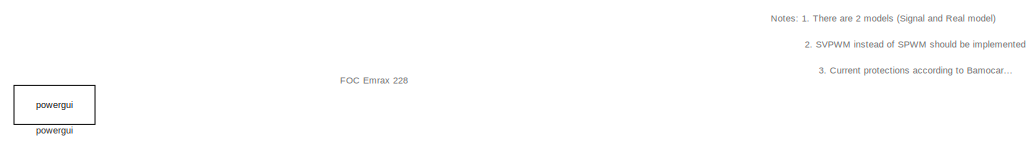
[diagram: root canvas - part 1/3, top right region]
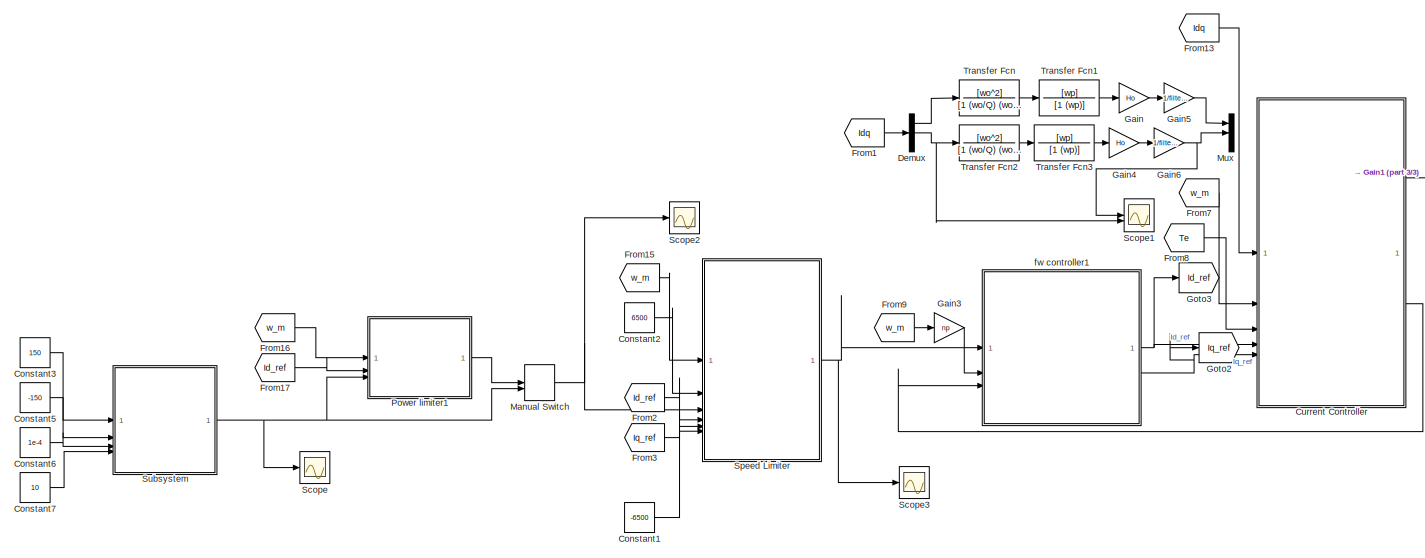
[diagram: root canvas - part 2/3, center side, full height]
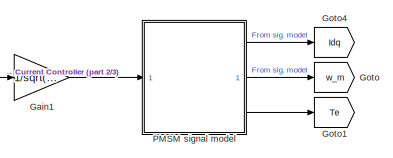
[diagram: root canvas - part 3/3, middle right region]
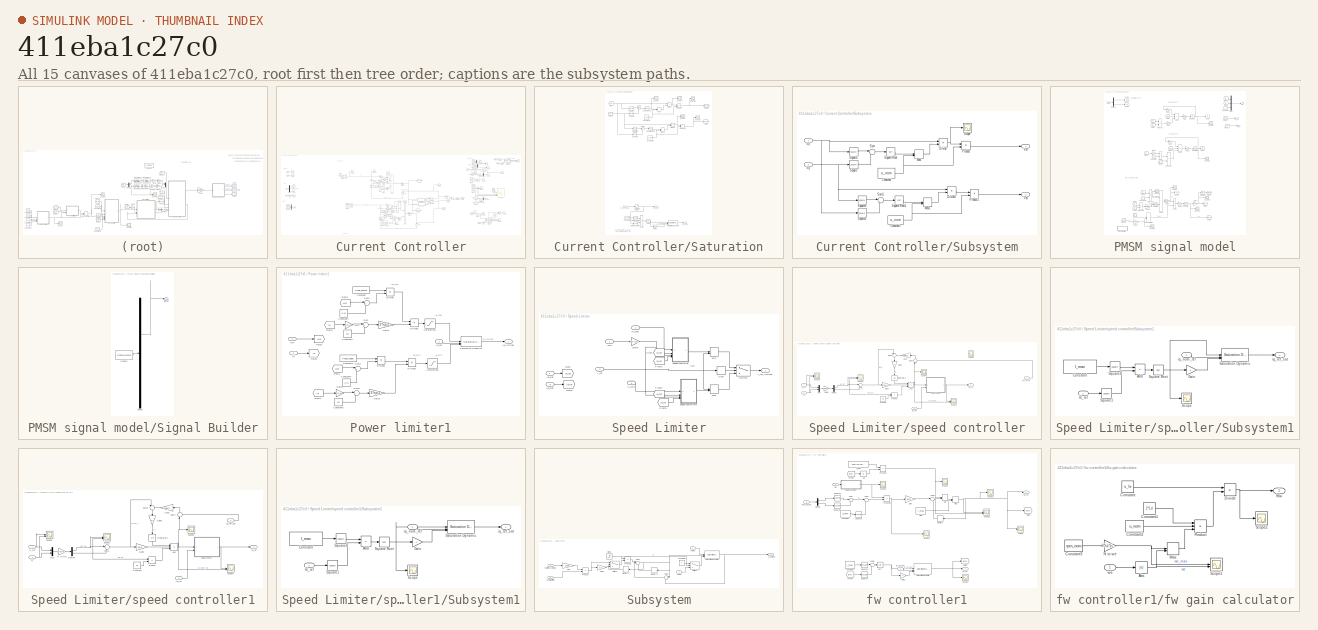
[diagram: thumbnail index - all 15 canvases of the model, root first then tree order]
MODEL slx_411eba1c27c0
KIND model
CONFIG AbsTol = auto
CONFIG EnableMultiTasking = off
CONFIG FixedStep = 1e-5
CONFIG MaxStep = 1e-5
CONFIG MinStep = 1e-6
CONFIG RelTol = 1e-3
CONFIG SampleTimeConstraint = Unconstrained
CONFIG SolverName = FixedStepAuto
CONFIG StartTime = 0.0
CONFIG StopTime = 1
BLOCK [Constant] Constant1
  Value = -6500
BLOCK [Constant] Constant2
  Value = 6500
BLOCK [Constant] Constant3
  Value = 150
BLOCK [Constant] Constant5
  Value = -150
BLOCK [Constant] Constant6
  Value = 1e-4
BLOCK [Constant] Constant7
  Value = 10
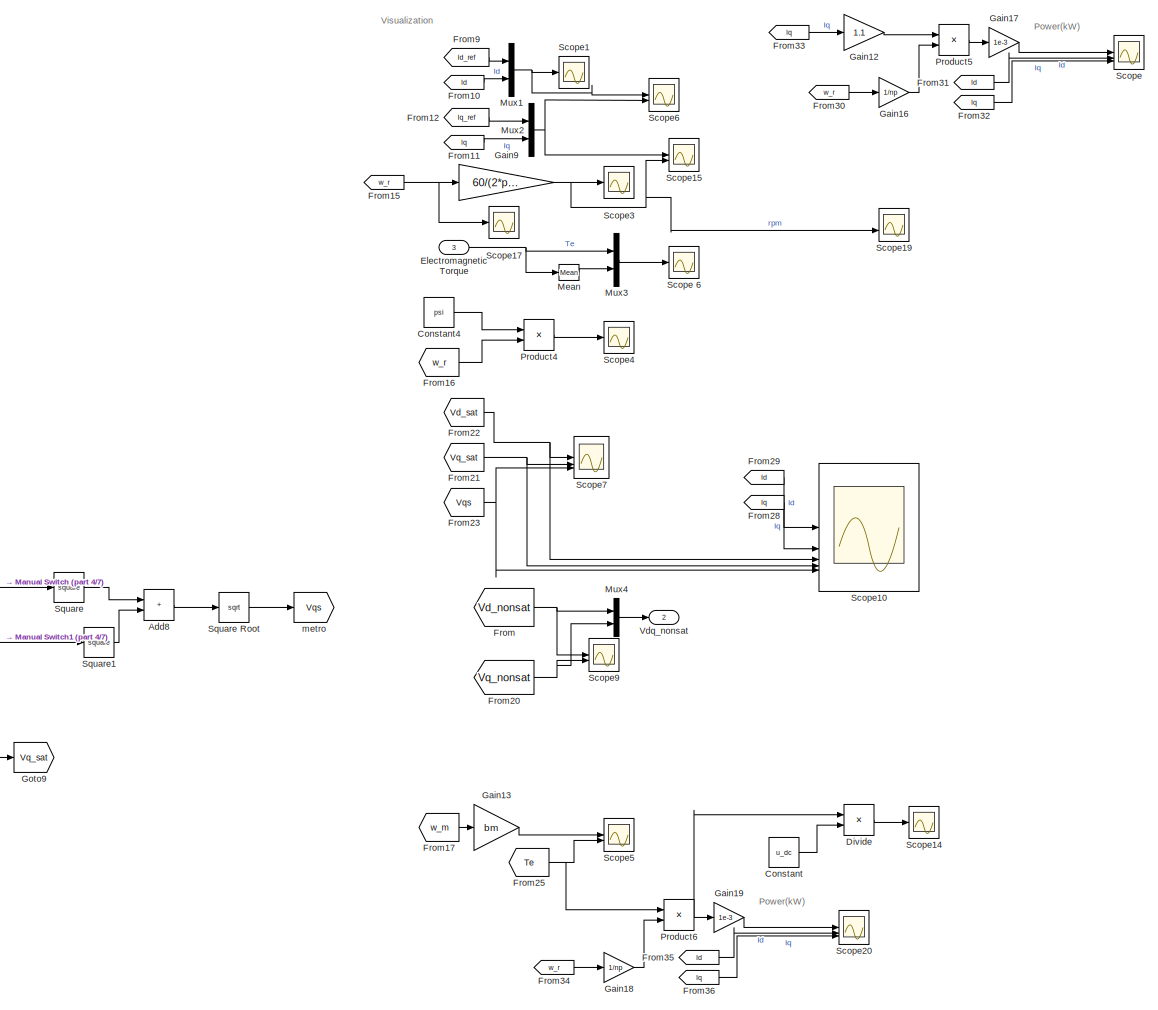
[diagram: Current Controller - part 1/7, right side, full height]
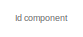
[diagram: Current Controller - part 2/7, top left region]
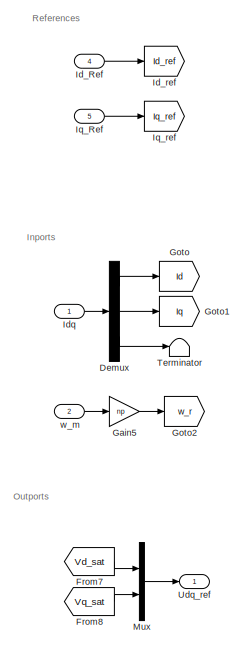
[diagram: Current Controller - part 3/7, middle left region]
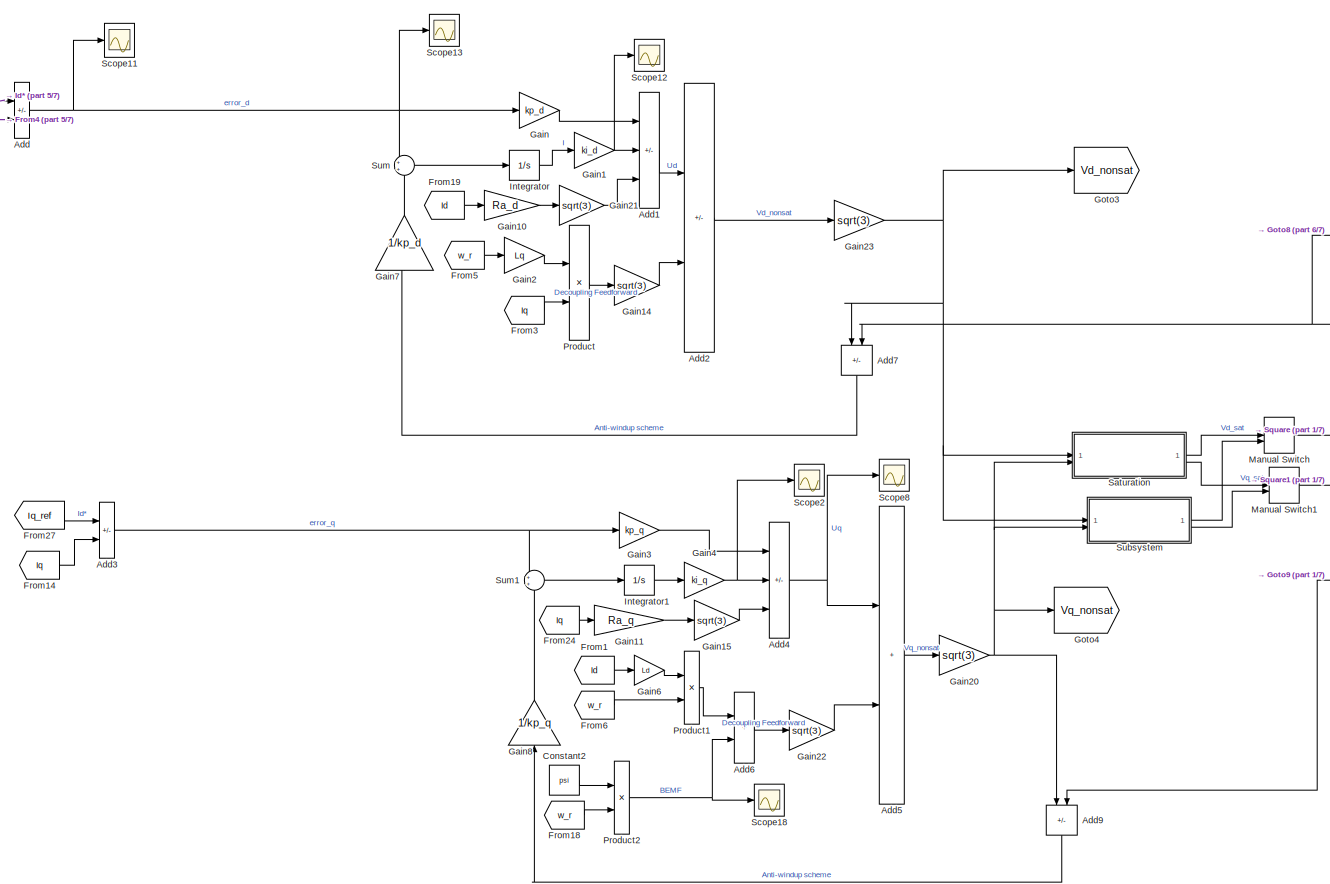
[diagram: Current Controller - part 4/7, center side, full height]
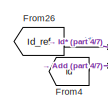
[diagram: Current Controller - part 5/7, top left region]
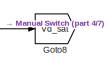
[diagram: Current Controller - part 6/7, central region]
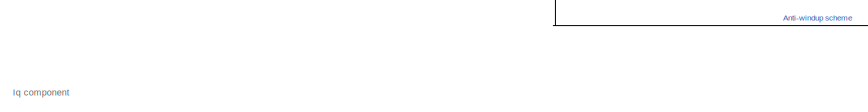
[diagram: Current Controller - part 7/7, bottom center region]
BLOCK [SubSystem] Current Controller
BLOCK [Sum] Current Controller/Add
  IconShape = rectangular
  Inputs = +-
BLOCK [Sum] Current Controller/Add1
  IconShape = rectangular
  Inputs = ++-
BLOCK [Sum] Current Controller/Add2
  IconShape = rectangular
  Inputs = +-
BLOCK [Sum] Current Controller/Add3
  IconShape = rectangular
  Inputs = +-
BLOCK [Sum] Current Controller/Add4
  IconShape = rectangular
  Inputs = ++-
BLOCK [Sum] Current Controller/Add5
  IconShape = rectangular
BLOCK [Sum] Current Controller/Add6
  IconShape = rectangular
BLOCK [Sum] Current Controller/Add7
  IconShape = rectangular
  Inputs = -+
  NameLocation = left
BLOCK [Sum] Current Controller/Add8
  IconShape = rectangular
BLOCK [Sum] Current Controller/Add9
  IconShape = rectangular
  Inputs = -+
  NameLocation = left
BLOCK [Constant] Current Controller/Constant
  Value = u_dc
BLOCK [Constant] Current Controller/Constant2
  Value = psi
BLOCK [Constant] Current Controller/Constant4
  Value = psi
BLOCK [Demux] Current Controller/Demux
  Outputs = 3
BLOCK [Product] Current Controller/Divide
  Inputs = */
BLOCK [Inport] Current Controller/Electromagnetic Torque
  Port = 3
BLOCK [From] Current Controller/From
  GotoTag = Vd_nonsat
  TagVisibility = global
BLOCK [From] Current Controller/From1
  GotoTag = Id
BLOCK [From] Current Controller/From10
  GotoTag = Id
BLOCK [From] Current Controller/From11
  GotoTag = Iq
BLOCK [From] Current Controller/From12
  GotoTag = Iq_ref
BLOCK [From] Current Controller/From14
  GotoTag = Iq
BLOCK [From] Current Controller/From15
  GotoTag = w_r
BLOCK [From] Current Controller/From16
  GotoTag = w_r
BLOCK [From] Current Controller/From17
  GotoTag = w_m
  TagVisibility = global
BLOCK [From] Current Controller/From18
  GotoTag = w_r
BLOCK [From] Current Controller/From19
  GotoTag = Id
BLOCK [From] Current Controller/From20
  GotoTag = Vq_nonsat
  TagVisibility = global
BLOCK [From] Current Controller/From21
  GotoTag = Vq_sat
BLOCK [From] Current Controller/From22
  GotoTag = Vd_sat
BLOCK [From] Current Controller/From23
  GotoTag = Vqs
BLOCK [From] Current Controller/From24
  GotoTag = Iq
BLOCK [From] Current Controller/From25
  GotoTag = Te
  TagVisibility = global
BLOCK [From] Current Controller/From26
  GotoTag = Id_ref
BLOCK [From] Current Controller/From27
  GotoTag = Iq_ref
BLOCK [From] Current Controller/From28
  GotoTag = Iq
BLOCK [From] Current Controller/From29
  GotoTag = Id
BLOCK [From] Current Controller/From3
  GotoTag = Iq
BLOCK [From] Current Controller/From30
  GotoTag = w_r
BLOCK [From] Current Controller/From31
  GotoTag = Id
BLOCK [From] Current Controller/From32
  GotoTag = Iq
BLOCK [From] Current Controller/From33
  GotoTag = Iq
BLOCK [From] Current Controller/From34
  GotoTag = w_r
BLOCK [From] Current Controller/From35
  GotoTag = Id
BLOCK [From] Current Controller/From36
  GotoTag = Iq
BLOCK [From] Current Controller/From4
  GotoTag = Id
BLOCK [From] Current Controller/From5
  GotoTag = w_r
BLOCK [From] Current Controller/From6
  GotoTag = w_r
BLOCK [From] Current Controller/From7
  GotoTag = Vd_sat
BLOCK [From] Current Controller/From8
  GotoTag = Vq_sat
BLOCK [From] Current Controller/From9
  GotoTag = Id_ref
BLOCK [Gain] Current Controller/Gain
  Gain = kp_d
BLOCK [Gain] Current Controller/Gain1
  Gain = ki_d
BLOCK [Gain] Current Controller/Gain10
  Gain = Ra_d
BLOCK [Gain] Current Controller/Gain11
  Gain = Ra_q
BLOCK [Gain] Current Controller/Gain12
  Gain = 1.1
BLOCK [Gain] Current Controller/Gain13
  Gain = bm
BLOCK [Gain] Current Controller/Gain14
  Gain = sqrt(3)
BLOCK [Gain] Current Controller/Gain15
  Gain = sqrt(3)
BLOCK [Gain] Current Controller/Gain16
  Gain = 1/np
BLOCK [Gain] Current Controller/Gain17
  Gain = 1e-3
BLOCK [Gain] Current Controller/Gain18
  Gain = 1/np
BLOCK [Gain] Current Controller/Gain19
  Gain = 1e-3
BLOCK [Gain] Current Controller/Gain2
  Gain = Lq
BLOCK [Gain] Current Controller/Gain20
  Commented = through
  Gain = sqrt(3)
BLOCK [Gain] Current Controller/Gain21
  Gain = sqrt(3)
BLOCK [Gain] Current Controller/Gain22
  Gain = sqrt(3)
BLOCK [Gain] Current Controller/Gain23
  Commented = through
  Gain = sqrt(3)
BLOCK [Gain] Current Controller/Gain3
  Gain = kp_q
BLOCK [Gain] Current Controller/Gain4
  Gain = ki_q
BLOCK [Gain] Current Controller/Gain5
  Gain = np
BLOCK [Gain] Current Controller/Gain6
  Gain = Ld
BLOCK [Gain] Current Controller/Gain7
  Gain = 1/kp_d
  NameLocation = right
BLOCK [Gain] Current Controller/Gain8
  Gain = 1/kp_q
  NameLocation = right
BLOCK [Gain] Current Controller/Gain9
  Gain = 60/(2*pi*np)
BLOCK [Goto] Current Controller/Goto
  GotoTag = Id
BLOCK [Goto] Current Controller/Goto1
  GotoTag = Iq
BLOCK [Goto] Current Controller/Goto2
  GotoTag = w_r
BLOCK [Goto] Current Controller/Goto3
  GotoTag = Vd_nonsat
  TagVisibility = global
BLOCK [Goto] Current Controller/Goto4
  GotoTag = Vq_nonsat
  TagVisibility = global
BLOCK [Goto] Current Controller/Goto8
  GotoTag = Vd_sat
BLOCK [Goto] Current Controller/Goto9
  GotoTag = Vq_sat
BLOCK [Inport] Current Controller/Id_Ref
  Port = 4
BLOCK [Goto] Current Controller/Id_ref
  GotoTag = Id_ref
BLOCK [Inport] Current Controller/Idq
BLOCK [Integrator] Current Controller/Integrator
BLOCK [Integrator] Current Controller/Integrator1
BLOCK [Inport] Current Controller/Iq_Ref
  Port = 5
BLOCK [Goto] Current Controller/Iq_ref
  GotoTag = Iq_ref
BLOCK [ManualSwitch] Current Controller/Manual Switch
  CurrentSetting = 0
BLOCK [ManualSwitch] Current Controller/Manual Switch1
  CurrentSetting = 0
BLOCK [Reference] Current Controller/Mean  REF=spsMeanLib/Mean
  SourceBlock = spsMeanLib/Mean
  SourceType = Mean
BLOCK [Mux] Current Controller/Mux
  DisplayOption = bar
  Inputs = 2
BLOCK [Mux] Current Controller/Mux1
  DisplayOption = bar
  Inputs = 2
BLOCK [Mux] Current Controller/Mux2
  DisplayOption = bar
  Inputs = 2
BLOCK [Mux] Current Controller/Mux3
  DisplayOption = bar
  Inputs = 2
BLOCK [Mux] Current Controller/Mux4
  DisplayOption = bar
  Inputs = 2
BLOCK [Product] Current Controller/Product
BLOCK [Product] Current Controller/Product1
BLOCK [Product] Current Controller/Product2
BLOCK [Product] Current Controller/Product4
BLOCK [Product] Current Controller/Product5
BLOCK [Product] Current Controller/Product6
BLOCK [SubSystem] Current Controller/Saturation
BLOCK [Sum] Current Controller/Saturation/Add8
  IconShape = rectangular
  Inputs = +-
BLOCK [Constant] Current Controller/Saturation/Constant1
  Value = u_nom
BLOCK [Constant] Current Controller/Saturation/Constant3
  Commented = on
  Value = u_nom
BLOCK [Constant] Current Controller/Saturation/Constant4
  Commented = on
  Value = u_nom
BLOCK [Product] Current Controller/Saturation/Divide
  Commented = on
  Inputs = */
BLOCK [Product] Current Controller/Saturation/Divide1
  Commented = on
  Inputs = */
BLOCK [From] Current Controller/Saturation/From
  Commented = on
  GotoTag = Vd
BLOCK [From] Current Controller/Saturation/From1
  Commented = on
  GotoTag = Vq
BLOCK [Gain] Current Controller/Saturation/Gain9
  Gain = -1
BLOCK [Goto] Current Controller/Saturation/Goto
  Commented = on
  GotoTag = Vq_sat
BLOCK [Goto] Current Controller/Saturation/Goto1
  Commented = on
  GotoTag = Vd_sat
BLOCK [Math] Current Controller/Saturation/Math Function
  Operator = square
  SignedPower = on
BLOCK [Math] Current Controller/Saturation/Math Function1
  Operator = square
  SignedPower = on
BLOCK [MinMax] Current Controller/Saturation/Max
  Commented = on
  Function = max
  Inputs = 2
BLOCK [MinMax] Current Controller/Saturation/Max1
  Commented = on
  Function = max
  Inputs = 2
BLOCK [Product] Current Controller/Saturation/Product3
  Commented = on
BLOCK [Product] Current Controller/Saturation/Product4
  Commented = on
BLOCK [Saturate] Current Controller/Saturation/Saturation
  LinearizeAsGain = off
  LowerLimit = -Vd_lim
  UpperLimit = Vd_lim
BLOCK [Reference] Current Controller/Saturation/Saturation Dynamic  REF=simulink/Discontinuities/Saturation
Dynamic
  SourceBlock = simulink/Discontinuities/Saturation\nDynamic
  SourceType = Saturation Dynamic
BLOCK [Scope] Current Controller/Saturation/Scope1
  Commented = on
  Floating = off
  NumInputPorts = 1
  ScopeSpecificationString = Simulink.scopes.TimeScopeBlockCfg('CurrentConfiguration', extmgr.ConfigurationSet(extmgr.Configuration('Core','General UI',true),extmgr.Configuration('Core','Source UI',true),extmgr.Configuration('Sources','WiredSimulink',true,'DataLoggingVariableName','ScopeData5'),extmgr.Configuration('Visuals','Time Domain',true,'SerializedDisplays',{struct('MinYLimReal','-0.09581','MaxYLimReal','0.86232','YLab...<+1447ch>
BLOCK [Scope] Current Controller/Saturation/Scope2
  Commented = on
  Floating = off
  NumInputPorts = 1
  ScopeSpecificationString = Simulink.scopes.TimeScopeBlockCfg('CurrentConfiguration', extmgr.ConfigurationSet(extmgr.Configuration('Core','General UI',true),extmgr.Configuration('Core','Source UI',true),extmgr.Configuration('Sources','WiredSimulink',true,'DataLoggingVariableName','ScopeData1'),extmgr.Configuration('Visuals','Time Domain',true,'SerializedDisplays',{struct('MinYLimReal','-42.77856','MaxYLimReal','385.00701','Y...<+1432ch>
BLOCK [Scope] Current Controller/Saturation/Scope3
  Commented = on
  Floating = off
  NumInputPorts = 1
  ScopeSpecificationString = Simulink.scopes.TimeScopeBlockCfg('CurrentConfiguration', extmgr.ConfigurationSet(extmgr.Configuration('Core','General UI',true),extmgr.Configuration('Core','Source UI',true),extmgr.Configuration('Sources','WiredSimulink',true,'DataLoggingVariableName','ScopeData2'),extmgr.Configuration('Visuals','Time Domain',true,'SerializedDisplays',{struct('MinYLimReal','-32.22777','MaxYLimReal','290.04993','Y...<+1475ch>
BLOCK [Scope] Current Controller/Saturation/Scope4
  Commented = on
  Floating = off
  NumInputPorts = 1
  ScopeSpecificationString = Simulink.scopes.TimeScopeBlockCfg('CurrentConfiguration', extmgr.ConfigurationSet(extmgr.Configuration('Core','General UI',true),extmgr.Configuration('Core','Source UI',true),extmgr.Configuration('Sources','WiredSimulink',true,'DataLoggingVariableName','ScopeData3'),extmgr.Configuration('Visuals','Time Domain',true,'SerializedDisplays',{struct('MinYLimReal','-284.96727','MaxYLimReal','31.66303','Y...<+1431ch>
BLOCK [Scope] Current Controller/Saturation/Scope7
  Commented = on
  Floating = off
  NumInputPorts = 1
  ScopeSpecificationString = Simulink.scopes.TimeScopeBlockCfg('CurrentConfiguration', extmgr.ConfigurationSet(extmgr.Configuration('Core','General UI',true),extmgr.Configuration('Core','Source UI',true),extmgr.Configuration('Sources','WiredSimulink',true,'DataLoggingVariableName','ScopeData1'),extmgr.Configuration('Visuals','Time Domain',true,'SerializedDisplays',{struct('MinYLimReal','-0.83942','MaxYLimReal','0.09327','YLab...<+1417ch>
BLOCK [Sqrt] Current Controller/Saturation/Sqrt
BLOCK [Math] Current Controller/Saturation/Square
  Commented = on
  Operator = square
BLOCK [Sqrt] Current Controller/Saturation/Square Root
  Commented = on
BLOCK [Sqrt] Current Controller/Saturation/Square Root1
  Commented = on
BLOCK [Math] Current Controller/Saturation/Square1
  Commented = on
  Operator = square
BLOCK [Math] Current Controller/Saturation/Square2
  Commented = on
  Operator = square
BLOCK [Math] Current Controller/Saturation/Square3
  Commented = on
  Operator = square
BLOCK [Sum] Current Controller/Saturation/Sum6
  Commented = on
  Inputs = |++
BLOCK [Sum] Current Controller/Saturation/Sum7
  Commented = on
  Inputs = |++
BLOCK [Inport] Current Controller/Saturation/Vd_nonsat
BLOCK [Outport] Current Controller/Saturation/Vd_sat
BLOCK [Inport] Current Controller/Saturation/Vq_nonsat
  Port = 2
BLOCK [Outport] Current Controller/Saturation/Vq_sat
  Port = 2
BLOCK [Scope] Current Controller/Scope
  Floating = off
  NumInputPorts = 3
  ScopeSpecificationString = Simulink.scopes.TimeScopeBlockCfg('CurrentConfiguration', extmgr.ConfigurationSet(extmgr.Configuration('Core','General UI',true),extmgr.Configuration('Core','Source UI',true),extmgr.Configuration('Sources','WiredSimulink',true,'DataLoggingVariableName','ScopeData1'),extmgr.Configuration('Visuals','Time Domain',true,'SerializedDisplays',{struct('MinYLimReal','-141.2497','MaxYLimReal','148.99483','Y...<+1928ch>
BLOCK [Scope] Current Controller/Scope 6
  Floating = off
  NumInputPorts = 1
  ScopeSpecificationString = Simulink.scopes.TimeScopeBlockCfg('CurrentConfiguration', extmgr.ConfigurationSet(extmgr.Configuration('Core','General UI',true),extmgr.Configuration('Core','Source UI',true),extmgr.Configuration('Sources','WiredSimulink',true,'DataLoggingVariableName','ScopeData6'),extmgr.Configuration('Visuals','Time Domain',true,'SerializedDisplays',{struct('MinYLimReal','-14.57819','MaxYLimReal','131.20375','Y...<+1854ch>
BLOCK [Scope] Current Controller/Scope1
  Floating = off
  NumInputPorts = 1
  ScopeSpecificationString = Simulink.scopes.TimeScopeBlockCfg('CurrentConfiguration', extmgr.ConfigurationSet(extmgr.Configuration('Core','General UI',true),extmgr.Configuration('Core','Source UI',true),extmgr.Configuration('Sources','WiredSimulink',true,'DataLoggingVariableName','ScopeData1'),extmgr.Configuration('Visuals','Time Domain',true,'SerializedDisplays',{struct('MinYLimReal','-0.83323','MaxYLimReal','1.43922','YLab...<+1511ch>
BLOCK [Scope] Current Controller/Scope10
  Floating = off
  NumInputPorts = 5
  ScopeSpecificationString = Simulink.scopes.TimeScopeBlockCfg('CurrentConfiguration', extmgr.ConfigurationSet(extmgr.Configuration('Core','General UI',true),extmgr.Configuration('Core','Source UI',true),extmgr.Configuration('Sources','WiredSimulink',true,'DataLoggingVariableName','ScopeData3'),extmgr.Configuration('Visuals','Time Domain',true,'SerializedDisplays',{struct('MinYLimReal','-2.50223','MaxYLimReal','6.06651','YLab...<+1989ch>
BLOCK [Scope] Current Controller/Scope11
  Floating = off
  NumInputPorts = 1
  ScopeSpecificationString = Simulink.scopes.TimeScopeBlockCfg('CurrentConfiguration', extmgr.ConfigurationSet(extmgr.Configuration('Core','General UI',true),extmgr.Configuration('Core','Source UI',true),extmgr.Configuration('Sources','WiredSimulink',true,'DataLoggingVariableName','ScopeData2'),extmgr.Configuration('Visuals','Time Domain',true,'SerializedDisplays',{struct('MinYLimReal','-0.0000000000005','MaxYLimReal','0.0000...<+1803ch>
BLOCK [Scope] Current Controller/Scope12
  Floating = off
  NumInputPorts = 1
  ScopeSpecificationString = Simulink.scopes.TimeScopeBlockCfg('CurrentConfiguration', extmgr.ConfigurationSet(extmgr.Configuration('Core','General UI',true),extmgr.Configuration('Core','Source UI',true),extmgr.Configuration('Sources','WiredSimulink',true,'DataLoggingVariableName','ScopeData1'),extmgr.Configuration('Visuals','Time Domain',true,'SerializedDisplays',{struct('MinYLimReal','-94.98776','MaxYLimReal','12.89536','YL...<+1453ch>
BLOCK [Scope] Current Controller/Scope13
  Floating = off
  NumInputPorts = 1
  ScopeSpecificationString = Simulink.scopes.TimeScopeBlockCfg('CurrentConfiguration', extmgr.ConfigurationSet(extmgr.Configuration('Core','General UI',true),extmgr.Configuration('Core','Source UI',true),extmgr.Configuration('Sources','WiredSimulink',true,'DataLoggingVariableName','ScopeData4'),extmgr.Configuration('Visuals','Time Domain',true,'SerializedDisplays',{struct('MinYLimReal','-43.48201','MaxYLimReal','4.83133','YLa...<+1441ch>
BLOCK [Scope] Current Controller/Scope14
  Floating = off
  NumInputPorts = 1
  ScopeSpecificationString = Simulink.scopes.TimeScopeBlockCfg('CurrentConfiguration', extmgr.ConfigurationSet(extmgr.Configuration('Core','General UI',true),extmgr.Configuration('Core','Source UI',true),extmgr.Configuration('Sources','WiredSimulink',true,'DataLoggingVariableName','ScopeData2'),extmgr.Configuration('Visuals','Time Domain',true,'SerializedDisplays',{struct('MinYLimReal','-96.83067','MaxYLimReal','145.26869','Y...<+1471ch>
BLOCK [Scope] Current Controller/Scope15
  Floating = off
  NumInputPorts = 2
  ScopeSpecificationString = Simulink.scopes.TimeScopeBlockCfg('CurrentConfiguration', extmgr.ConfigurationSet(extmgr.Configuration('Core','General UI',true),extmgr.Configuration('Core','Source UI',true),extmgr.Configuration('Sources','WiredSimulink',true,'DataLoggingVariableName','ScopeData3'),extmgr.Configuration('Visuals','Time Domain',true,'SerializedDisplays',{struct('MinYLimReal','-7394.36362','MaxYLimReal','8042.84471'...<+1928ch>
BLOCK [Scope] Current Controller/Scope17
  Floating = off
  NumInputPorts = 1
  ScopeSpecificationString = Simulink.scopes.TimeScopeBlockCfg('CurrentConfiguration', extmgr.ConfigurationSet(extmgr.Configuration('Core','General UI',true),extmgr.Configuration('Core','Source UI',true),extmgr.Configuration('Sources','WiredSimulink',true,'DataLoggingVariableName','ScopeData4'),extmgr.Configuration('Visuals','Time Domain',true,'SerializedDisplays',{struct('MinYLimReal','-361.33336','MaxYLimReal','3252.0002','...<+1771ch>
BLOCK [Scope] Current Controller/Scope18
  Floating = off
  NumInputPorts = 1
  ScopeSpecificationString = Simulink.scopes.TimeScopeBlockCfg('CurrentConfiguration', extmgr.ConfigurationSet(extmgr.Configuration('Core','General UI',true),extmgr.Configuration('Core','Source UI',true),extmgr.Configuration('Sources','WiredSimulink',true,'DataLoggingVariableName','ScopeData5'),extmgr.Configuration('Visuals','Time Domain',true,'SerializedDisplays',{struct('MinYLimReal','-60.82089','MaxYLimReal','547.38803','Y...<+1437ch>
BLOCK [Scope] Current Controller/Scope19
  Floating = off
  NumInputPorts = 2
  ScopeSpecificationString = Simulink.scopes.TimeScopeBlockCfg('CurrentConfiguration', extmgr.ConfigurationSet(extmgr.Configuration('Core','General UI',true),extmgr.Configuration('Core','Source UI',true),extmgr.Configuration('Sources','WiredSimulink',true,'DataLoggingVariableName','ScopeData6'),extmgr.Configuration('Visuals','Time Domain',true,'SerializedDisplays',{struct('MinYLimReal','74.34624','MaxYLimReal','76.0348','YLab...<+1587ch>
BLOCK [Scope] Current Controller/Scope2
  Floating = off
  NumInputPorts = 1
  ScopeSpecificationString = Simulink.scopes.TimeScopeBlockCfg('CurrentConfiguration', extmgr.ConfigurationSet(extmgr.Configuration('Core','General UI',true),extmgr.Configuration('Core','Source UI',true),extmgr.Configuration('Sources','WiredSimulink',true,'DataLoggingVariableName','ScopeData1'),extmgr.Configuration('Visuals','Time Domain',true,'SerializedDisplays',{struct('MinYLimReal','-135.66066','MaxYLimReal','111.80173','...<+1430ch>
BLOCK [Scope] Current Controller/Scope20
  Floating = off
  NumInputPorts = 3
  ScopeSpecificationString = Simulink.scopes.TimeScopeBlockCfg('CurrentConfiguration', extmgr.ConfigurationSet(extmgr.Configuration('Core','General UI',true),extmgr.Configuration('Core','Source UI',true),extmgr.Configuration('Sources','WiredSimulink',true,'DataLoggingVariableName','ScopeData3'),extmgr.Configuration('Visuals','Time Domain',true,'SerializedDisplays',{struct('MinYLimReal','-175.01281','MaxYLimReal','184.37925','...<+1916ch>
BLOCK [Scope] Current Controller/Scope3
  Floating = off
  NumInputPorts = 1
  ScopeSpecificationString = Simulink.scopes.TimeScopeBlockCfg('CurrentConfiguration', extmgr.ConfigurationSet(extmgr.Configuration('Core','General UI',true),extmgr.Configuration('Core','Source UI',true),extmgr.Configuration('Sources','WiredSimulink',true,'DataLoggingVariableName','ScopeData3'),extmgr.Configuration('Visuals','Time Domain',true,'SerializedDisplays',{struct('MinYLimReal','-824.24616','MaxYLimReal','7418.21547',...<+1799ch>
BLOCK [Scope] Current Controller/Scope4
  Floating = off
  NumInputPorts = 1
  ScopeSpecificationString = Simulink.scopes.TimeScopeBlockCfg('CurrentConfiguration', extmgr.ConfigurationSet(extmgr.Configuration('Core','General UI',true),extmgr.Configuration('Core','Source UI',true),extmgr.Configuration('Sources','WiredSimulink',true,'DataLoggingVariableName','ScopeData8'),extmgr.Configuration('Visuals','Time Domain',true,'SerializedDisplays',{struct('MinYLimReal','-4.59536','MaxYLimReal','41.35823','YLa...<+1765ch>
BLOCK [Scope] Current Controller/Scope5
  Floating = off
  NumInputPorts = 2
  ScopeSpecificationString = Simulink.scopes.TimeScopeBlockCfg('CurrentConfiguration', extmgr.ConfigurationSet(extmgr.Configuration('Core','General UI',true),extmgr.Configuration('Core','Source UI',true),extmgr.Configuration('Sources','WiredSimulink',true,'DataLoggingVariableName','ScopeData3'),extmgr.Configuration('Visuals','Time Domain',true,'SerializedDisplays',{struct('MinYLimReal','-15.09181','MaxYLimReal','135.82625','Y...<+1897ch>
BLOCK [Scope] Current Controller/Scope6
  Floating = off
  NumInputPorts = 2
  ScopeSpecificationString = Simulink.scopes.TimeScopeBlockCfg('CurrentConfiguration', extmgr.ConfigurationSet(extmgr.Configuration('Core','General UI',true),extmgr.Configuration('Core','Source UI',true),extmgr.Configuration('Sources','WiredSimulink',true,'DataLoggingVariableName','ScopeData1'),extmgr.Configuration('Visuals','Time Domain',true,'SerializedDisplays',{struct('MinYLimReal','-233.74859','MaxYLimReal','192.63873','...<+1950ch>
BLOCK [Scope] Current Controller/Scope7
  Floating = off
  NumInputPorts = 3
  ScopeSpecificationString = Simulink.scopes.TimeScopeBlockCfg('CurrentConfiguration', extmgr.ConfigurationSet(extmgr.Configuration('Core','General UI',true),extmgr.Configuration('Core','Source UI',true),extmgr.Configuration('Sources','WiredSimulink',true,'DataLoggingVariableName','ScopeData2'),extmgr.Configuration('Visuals','Time Domain',true,'SerializedDisplays',{struct('MinYLimReal','-166.90414','MaxYLimReal','450.40289','...<+1923ch>
BLOCK [Scope] Current Controller/Scope8
  Floating = off
  NumInputPorts = 1
  ScopeSpecificationString = Simulink.scopes.TimeScopeBlockCfg('CurrentConfiguration', extmgr.ConfigurationSet(extmgr.Configuration('Core','General UI',true),extmgr.Configuration('Core','Source UI',true),extmgr.Configuration('Sources','WiredSimulink',true,'DataLoggingVariableName','ScopeData2'),extmgr.Configuration('Visuals','Time Domain',true,'SerializedDisplays',{struct('MinYLimReal','-20.3139','MaxYLimReal','32.9607','YLab...<+1390ch>
BLOCK [Scope] Current Controller/Scope9
  Floating = off
  NumInputPorts = 2
  ScopeSpecificationString = Simulink.scopes.TimeScopeBlockCfg('CurrentConfiguration', extmgr.ConfigurationSet(extmgr.Configuration('Core','General UI',true),extmgr.Configuration('Core','Source UI',true),extmgr.Configuration('Sources','WiredSimulink',true,'DataLoggingVariableName','ScopeData4'),extmgr.Configuration('Visuals','Time Domain',true,'SerializedDisplays',{struct('MinYLimReal','-206.60555','MaxYLimReal','500.20932','...<+1836ch>
BLOCK [Math] Current Controller/Square
  Operator = square
BLOCK [Sqrt] Current Controller/Square Root
BLOCK [Math] Current Controller/Square1
  Operator = square
BLOCK [SubSystem] Current Controller/Subsystem
BLOCK [Constant] Current Controller/Subsystem/Constant
  Value = u_nom
BLOCK [Constant] Current Controller/Subsystem/Constant1
  Value = u_nom
BLOCK [Product] Current Controller/Subsystem/Divide
  Inputs = */
BLOCK [Product] Current Controller/Subsystem/Divide1
  Inputs = */
BLOCK [MinMax] Current Controller/Subsystem/Max
  Function = max
  Inputs = 2
BLOCK [MinMax] Current Controller/Subsystem/Max1
  Function = max
  Inputs = 2
BLOCK [Product] Current Controller/Subsystem/Product
BLOCK [Product] Current Controller/Subsystem/Product1
BLOCK [Scope] Current Controller/Subsystem/Scope
  Floating = off
  NumInputPorts = 1
  ScopeSpecificationString = Simulink.scopes.TimeScopeBlockCfg('CurrentConfiguration', extmgr.ConfigurationSet(extmgr.Configuration('Core','General UI',true),extmgr.Configuration('Core','Source UI',true),extmgr.Configuration('Sources','WiredSimulink',true,'DataLoggingVariableName','ScopeData3'),extmgr.Configuration('Visuals','Time Domain',true,'SerializedDisplays',{struct('MinYLimReal','-0.03324','MaxYLimReal','0.74071','YLab...<+1407ch>
BLOCK [Math] Current Controller/Subsystem/Square
  Operator = square
BLOCK [Sqrt] Current Controller/Subsystem/Square Root
BLOCK [Sqrt] Current Controller/Subsystem/Square Root1
BLOCK [Math] Current Controller/Subsystem/Square1
  Operator = square
BLOCK [Math] Current Controller/Subsystem/Square2
  Operator = square
BLOCK [Math] Current Controller/Subsystem/Square3
  Operator = square
BLOCK [Sum] Current Controller/Subsystem/Sum
  Inputs = |++
BLOCK [Sum] Current Controller/Subsystem/Sum1
  Inputs = |++
BLOCK [Inport] Current Controller/Subsystem/Vd
BLOCK [Outport] Current Controller/Subsystem/Vd\
BLOCK [Inport] Current Controller/Subsystem/Vq
  Port = 2
BLOCK [Outport] Current Controller/Subsystem/Vq\
  Port = 2
BLOCK [Sum] Current Controller/Sum
BLOCK [Sum] Current Controller/Sum1
BLOCK [Terminator] Current Controller/Terminator
BLOCK [Outport] Current Controller/Udq_ref 
  VectorParamsAs1DForOutWhenUnconnected = off
BLOCK [Outport] Current Controller/Vdq_nonsat
  Port = 2
BLOCK [Goto] Current Controller/metro
  GotoTag = Vqs
BLOCK [Inport] Current Controller/w_m
  Port = 2
BLOCK [Demux] Demux
  Commented = on
  Outputs = 3
BLOCK [From] From1
  Commented = on
  GotoTag = Idq
BLOCK [From] From13
  GotoTag = Idq
BLOCK [From] From15
  GotoTag = w_m
BLOCK [From] From16
  GotoTag = w_m
BLOCK [From] From17
  GotoTag = Id_ref
BLOCK [From] From2
  GotoTag = Id_ref
BLOCK [From] From3
  GotoTag = Iq_ref
BLOCK [From] From7
  GotoTag = w_m
BLOCK [From] From8
  GotoTag = Te
BLOCK [From] From9
  GotoTag = w_m
BLOCK [Gain] Gain
  Commented = on
  Gain = Ho
BLOCK [Gain] Gain1
  Gain = 1/sqrt(3)
BLOCK [Gain] Gain3
  Gain = np
BLOCK [Gain] Gain4
  Commented = on
  Gain = Ho
BLOCK [Gain] Gain5
  Commented = on
  Gain = 1/filter_gain
BLOCK [Gain] Gain6
  Commented = on
  Gain = 1/filter_gain
BLOCK [Goto] Goto
  GotoTag = w_m
BLOCK [Goto] Goto1
  GotoTag = Te
BLOCK [Goto] Goto2
  GotoTag = Iq_ref
BLOCK [Goto] Goto3
  GotoTag = Id_ref
BLOCK [Goto] Goto4
  GotoTag = Idq
BLOCK [ManualSwitch] Manual Switch
  CurrentSetting = 0
BLOCK [Mux] Mux
  DisplayOption = bar
  Inputs = 3
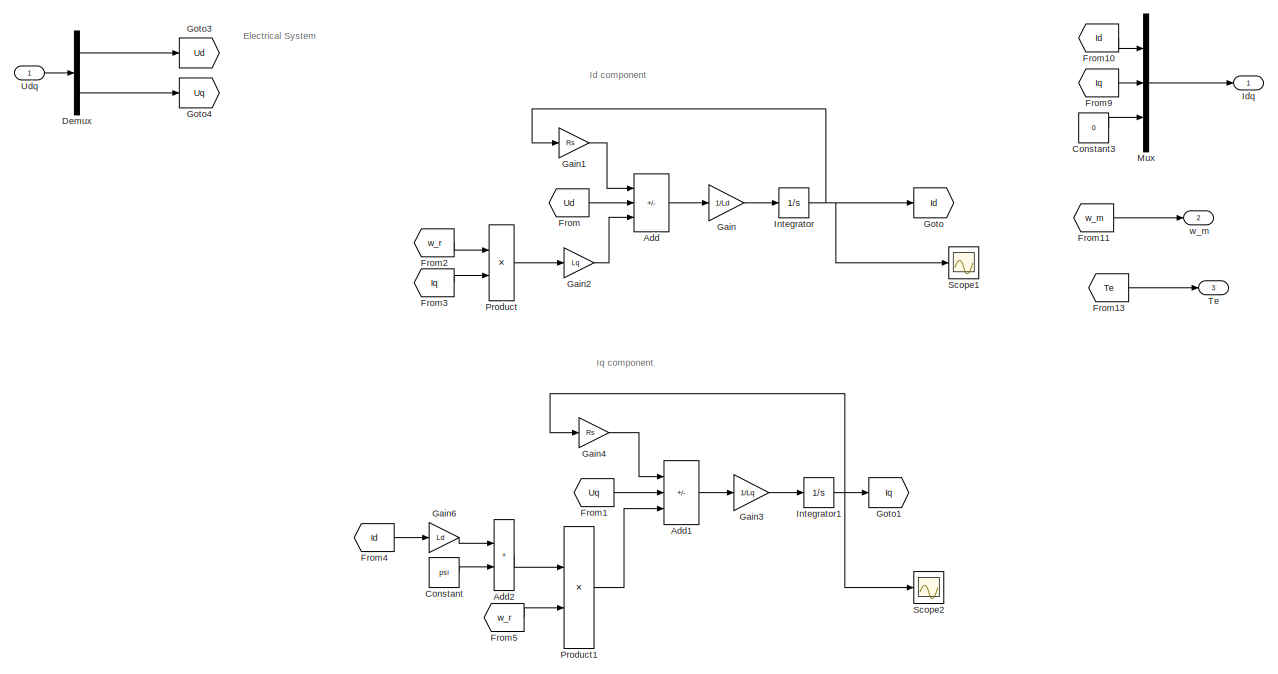
[diagram: PMSM signal model - part 1/2, full width, top band]
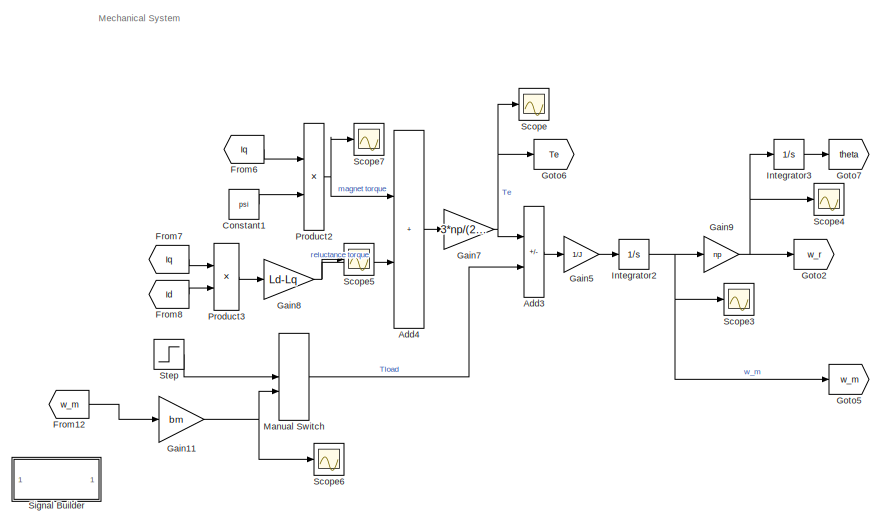
[diagram: PMSM signal model - part 2/2, bottom center region]
BLOCK [SubSystem] PMSM signal model
BLOCK [Sum] PMSM signal model/Add
  IconShape = rectangular
  Inputs = -++
BLOCK [Sum] PMSM signal model/Add1
  IconShape = rectangular
  Inputs = -+-
BLOCK [Sum] PMSM signal model/Add2
  IconShape = rectangular
BLOCK [Sum] PMSM signal model/Add3
  IconShape = rectangular
  Inputs = +-
BLOCK [Sum] PMSM signal model/Add4
  IconShape = rectangular
BLOCK [Constant] PMSM signal model/Constant
  Value = psi
BLOCK [Constant] PMSM signal model/Constant1
  Value = psi
BLOCK [Constant] PMSM signal model/Constant3
  Value = 0
BLOCK [Demux] PMSM signal model/Demux
  Outputs = 2
BLOCK [From] PMSM signal model/From
  GotoTag = Ud
BLOCK [From] PMSM signal model/From1
  GotoTag = Uq
BLOCK [From] PMSM signal model/From10
  GotoTag = Id
  TagVisibility = global
BLOCK [From] PMSM signal model/From11
  GotoTag = w_m
  TagVisibility = global
BLOCK [From] PMSM signal model/From12
  GotoTag = w_m
  TagVisibility = global
BLOCK [From] PMSM signal model/From13
  GotoTag = Te
  TagVisibility = global
BLOCK [From] PMSM signal model/From2
  GotoTag = w_r
  TagVisibility = global
BLOCK [From] PMSM signal model/From3
  GotoTag = Iq
  TagVisibility = global
BLOCK [From] PMSM signal model/From4
  GotoTag = Id
  TagVisibility = global
BLOCK [From] PMSM signal model/From5
  GotoTag = w_r
  TagVisibility = global
BLOCK [From] PMSM signal model/From6
  GotoTag = Iq
  TagVisibility = global
BLOCK [From] PMSM signal model/From7
  GotoTag = Iq
  TagVisibility = global
BLOCK [From] PMSM signal model/From8
  GotoTag = Id
  TagVisibility = global
BLOCK [From] PMSM signal model/From9
  GotoTag = Iq
  TagVisibility = global
BLOCK [Gain] PMSM signal model/Gain
  Gain = 1/Ld
BLOCK [Gain] PMSM signal model/Gain1
  Gain = Rs
BLOCK [Gain] PMSM signal model/Gain11
  Gain = bm
BLOCK [Gain] PMSM signal model/Gain2
  Gain = Lq
BLOCK [Gain] PMSM signal model/Gain3
  Gain = 1/Lq
BLOCK [Gain] PMSM signal model/Gain4
  Gain = Rs
BLOCK [Gain] PMSM signal model/Gain5
  Gain = 1/J
BLOCK [Gain] PMSM signal model/Gain6
  Gain = Ld
BLOCK [Gain] PMSM signal model/Gain7
  Gain = 3*np/(2*k^2)
BLOCK [Gain] PMSM signal model/Gain8
  Gain = Ld-Lq
BLOCK [Gain] PMSM signal model/Gain9
  Gain = np
BLOCK [Goto] PMSM signal model/Goto
  GotoTag = Id
  TagVisibility = global
BLOCK [Goto] PMSM signal model/Goto1
  GotoTag = Iq
  TagVisibility = global
BLOCK [Goto] PMSM signal model/Goto2
  GotoTag = w_r
  TagVisibility = global
BLOCK [Goto] PMSM signal model/Goto3
  GotoTag = Ud
BLOCK [Goto] PMSM signal model/Goto4
  GotoTag = Uq
BLOCK [Goto] PMSM signal model/Goto5
  GotoTag = w_m
  TagVisibility = global
BLOCK [Goto] PMSM signal model/Goto6
  GotoTag = Te
  TagVisibility = global
BLOCK [Goto] PMSM signal model/Goto7
  GotoTag = theta
BLOCK [Outport] PMSM signal model/Idq
  VectorParamsAs1DForOutWhenUnconnected = off
BLOCK [Integrator] PMSM signal model/Integrator
BLOCK [Integrator] PMSM signal model/Integrator1
BLOCK [Integrator] PMSM signal model/Integrator2
BLOCK [Integrator] PMSM signal model/Integrator3
BLOCK [ManualSwitch] PMSM signal model/Manual Switch
  CurrentSetting = 0
BLOCK [Mux] PMSM signal model/Mux
  DisplayOption = bar
  Inputs = 3
BLOCK [Product] PMSM signal model/Product
BLOCK [Product] PMSM signal model/Product1
BLOCK [Product] PMSM signal model/Product2
BLOCK [Product] PMSM signal model/Product3
BLOCK [Scope] PMSM signal model/Scope
  Floating = off
  NumInputPorts = 1
  ScopeSpecificationString = Simulink.scopes.TimeScopeBlockCfg('CurrentConfiguration', extmgr.ConfigurationSet(extmgr.Configuration('Core','General UI',true),extmgr.Configuration('Core','Source UI',true),extmgr.Configuration('Sources','WiredSimulink',true,'DataLoggingVariableName','ScopeData1'),extmgr.Configuration('Visuals','Time Domain',true,'SerializedDisplays',{struct('MinYLimReal','-118.73778','MaxYLimReal','68.74293','Y...<+1782ch>
BLOCK [Scope] PMSM signal model/Scope1
  Floating = off
  NumInputPorts = 1
  ScopeSpecificationString = Simulink.scopes.TimeScopeBlockCfg('CurrentConfiguration', extmgr.ConfigurationSet(extmgr.Configuration('Core','General UI',true),extmgr.Configuration('Core','Source UI',true),extmgr.Configuration('Sources','WiredSimulink',true,'DataLoggingVariableName','ScopeData1'),extmgr.Configuration('Visuals','Time Domain',true,'SerializedDisplays',{struct('MinYLimReal','-18.18644','MaxYLimReal','163.67796','Y...<+1502ch>
BLOCK [Scope] PMSM signal model/Scope2
  Floating = off
  NumInputPorts = 1
  ScopeSpecificationString = Simulink.scopes.TimeScopeBlockCfg('CurrentConfiguration', extmgr.ConfigurationSet(extmgr.Configuration('Core','General UI',true),extmgr.Configuration('Core','Source UI',true),extmgr.Configuration('Sources','WiredSimulink',true,'DataLoggingVariableName','ScopeData2'),extmgr.Configuration('Visuals','Time Domain',true,'SerializedDisplays',{struct('MinYLimReal','-82.04106','MaxYLimReal','738.36957','Y...<+1503ch>
BLOCK [Scope] PMSM signal model/Scope3
  Floating = off
  NumInputPorts = 1
  ScopeSpecificationString = Simulink.scopes.TimeScopeBlockCfg('CurrentConfiguration', extmgr.ConfigurationSet(extmgr.Configuration('Core','General UI',true),extmgr.Configuration('Core','Source UI',true),extmgr.Configuration('Sources','WiredSimulink',true),extmgr.Configuration('Visuals','Time Domain',true,'SerializedDisplays',{struct('MinYLimReal','-84.73491','MaxYLimReal','762.61421','YLabelReal','','MinYLimMag','0.00000','M...<+1431ch>
BLOCK [Scope] PMSM signal model/Scope4
  Floating = off
  NumInputPorts = 1
  ScopeSpecificationString = Simulink.scopes.TimeScopeBlockCfg('CurrentConfiguration', extmgr.ConfigurationSet(extmgr.Configuration('Core','General UI',true),extmgr.Configuration('Core','Source UI',true),extmgr.Configuration('Sources','WiredSimulink',true),extmgr.Configuration('Visuals','Time Domain',true,'SerializedDisplays',{struct('MinYLimReal','-958.00264','MaxYLimReal','8622.02374','YLabelReal','','MinYLimMag',' 0.00000'...<+1441ch>
BLOCK [Scope] PMSM signal model/Scope5
  Floating = off
  NumInputPorts = 1
  ScopeSpecificationString = Simulink.scopes.TimeScopeBlockCfg('CurrentConfiguration', extmgr.ConfigurationSet(extmgr.Configuration('Core','General UI',true),extmgr.Configuration('Core','Source UI',true),extmgr.Configuration('Sources','WiredSimulink',true,'DataLoggingVariableName','ScopeData4'),extmgr.Configuration('Visuals','Time Domain',true,'SerializedDisplays',{struct('MinYLimReal','-0.01815','MaxYLimReal','0.16336','YLab...<+1472ch>
BLOCK [Scope] PMSM signal model/Scope6
  Floating = off
  NumInputPorts = 1
  ScopeSpecificationString = Simulink.scopes.TimeScopeBlockCfg('CurrentConfiguration', extmgr.ConfigurationSet(extmgr.Configuration('Core','General UI',true),extmgr.Configuration('Core','Source UI',true),extmgr.Configuration('Sources','WiredSimulink',true,'DataLoggingVariableName','ScopeData1'),extmgr.Configuration('Visuals','Time Domain',true,'SerializedDisplays',{struct('MinYLimReal','-7.90342','MaxYLimReal','71.13079','YLa...<+1615ch>
BLOCK [Scope] PMSM signal model/Scope7
  Floating = off
  NumInputPorts = 1
  ScopeSpecificationString = Simulink.scopes.TimeScopeBlockCfg('CurrentConfiguration', extmgr.ConfigurationSet(extmgr.Configuration('Core','General UI',true),extmgr.Configuration('Core','Source UI',true),extmgr.Configuration('Sources','WiredSimulink',true,'DataLoggingVariableName','ScopeData2'),extmgr.Configuration('Visuals','Time Domain',true,'SerializedDisplays',{struct('MinYLimReal','-1.69528','MaxYLimReal','14.32594','YLa...<+1472ch>
BLOCK [SubSystem] PMSM signal model/Signal Builder
  ClipboardFcn = sigbuilder_block('clipboard');
  CloseFcn = sigbuilder_block('close');
  ContinueFcn = sigbuilder_block('continue');
  CopyFcn = sigbuilder_block('copy');
  DeleteFcn = sigbuilder_block('delete');
  LoadFcn = sigbuilder_block('load');
  MaskHideContents = on
  ModelCloseFcn = sigbuilder_block('modelClose');
  NameChangeFcn = sigbuilder_block('namechange');
  OpenFcn = sigbuilder_block('open',[437.6 199.2 550.4 400 ]);
  PauseFcn = sigbuilder_block('pause');
  PreSaveFcn = sigbuilder_block('preSave');
  StartFcn = sigbuilder_block('start');
  StopFcn = sigbuilder_block('stop');
  Tag = STV Subsys
BLOCK [Demux] PMSM signal model/Signal Builder/Demux
  DisplayOption = none
  Outputs = 1
  Tag = STV Demux
BLOCK [FromWorkspace] PMSM signal model/Signal Builder/FromWs
  Tag = STV FromWs
  VariableName = tuvar
BLOCK [Outport] PMSM signal model/Signal Builder/Signal 1
  Tag = STV Outport
BLOCK [Step] PMSM signal model/Step
  After = 200
  SampleTime = 0
  Time = 0.5
BLOCK [Outport] PMSM signal model/Te 
  Port = 3
  VectorParamsAs1DForOutWhenUnconnected = off
BLOCK [Inport] PMSM signal model/Udq
BLOCK [Outport] PMSM signal model/w_m 
  Port = 2
  VectorParamsAs1DForOutWhenUnconnected = off
BLOCK [SubSystem] Power limiter1
BLOCK [Constant] Power limiter1/Constant
  Value = Peak_power
BLOCK [Constant] Power limiter1/Constant1
  Value = Peak_regen
BLOCK [Constant] Power limiter1/Constant2
  Value = psi
BLOCK [Constant] Power limiter1/Constant3
  Value = 0.01
BLOCK [Constant] Power limiter1/Constant4
  Value = 0.01
BLOCK [Constant] Power limiter1/Constant5
  Value = psi
BLOCK [Product] Power limiter1/Divide
  Inputs = */
BLOCK [Product] Power limiter1/Divide1
  Inputs = */
BLOCK [Product] Power limiter1/Divide2
  Inputs = */
BLOCK [Product] Power limiter1/Divide3
  Inputs = */
BLOCK [From] Power limiter1/From1
  GotoTag = wm
BLOCK [From] Power limiter1/From2
  GotoTag = wm
BLOCK [From] Power limiter1/From3
  GotoTag = Id
BLOCK [From] Power limiter1/From4
  GotoTag = Id
BLOCK [Gain] Power limiter1/Gain
  Gain = Ld-Lq
BLOCK [Gain] Power limiter1/Gain1
  Gain = 3*np/2
BLOCK [Gain] Power limiter1/Gain2
  Gain = Ld-Lq
BLOCK [Gain] Power limiter1/Gain3
  Gain = 3*np/2
BLOCK [Goto] Power limiter1/Goto1
  GotoTag = Id
BLOCK [Goto] Power limiter1/Goto2
  GotoTag = wm
BLOCK [Inport] Power limiter1/Id
  Port = 2
BLOCK [Outport] Power limiter1/Iq_limited
BLOCK [Inport] Power limiter1/Iq_ref
  Port = 3
BLOCK [Reference] Power limiter1/Saturation Dynamic2  REF=simulink/Discontinuities/Saturation
Dynamic
  SourceBlock = simulink/Discontinuities/Saturation\nDynamic
  SourceType = Saturation Dynamic
BLOCK [Saturate] Power limiter1/Saturation1
  LowerLimit = -10000
  UpperLimit = 10000
BLOCK [Saturate] Power limiter1/Saturation2
  LowerLimit = -10000
  UpperLimit = 10000
BLOCK [Sum] Power limiter1/Sum
  Inputs = |++
BLOCK [Sum] Power limiter1/Sum1
  Inputs = |++
BLOCK [Sum] Power limiter1/Sum2
  Inputs = |++
BLOCK [Sum] Power limiter1/Sum3
  Inputs = |++
BLOCK [Inport] Power limiter1/wm
BLOCK [Scope] Scope
  Floating = off
  NumInputPorts = 1
  ScopeSpecificationString = Simulink.scopes.TimeScopeBlockCfg('CurrentConfiguration', extmgr.ConfigurationSet(extmgr.Configuration('Core','General UI',true),extmgr.Configuration('Core','Source UI',true),extmgr.Configuration('Sources','WiredSimulink',true,'DataLoggingVariableName','ScopeData1'),extmgr.Configuration('Visuals','Time Domain',true,'SerializedDisplays',{struct('MinYLimReal','-187.5','MaxYLimReal','187.5','YLabelRe...<+1438ch>
BLOCK [Scope] Scope1
  Commented = on
  Floating = off
  NumInputPorts = 2
  ScopeSpecificationString = Simulink.scopes.TimeScopeBlockCfg('CurrentConfiguration', extmgr.ConfigurationSet(extmgr.Configuration('Core','General UI',true),extmgr.Configuration('Core','Source UI',true),extmgr.Configuration('Sources','WiredSimulink',true,'DataLoggingVariableName','ScopeData1'),extmgr.Configuration('Visuals','Time Domain',true,'SerializedDisplays',{struct('MinYLimReal','-18.75','MaxYLimReal','168.75','YLabelR...<+1462ch>
BLOCK [Scope] Scope2
  Floating = off
  NumInputPorts = 1
  ScopeSpecificationString = Simulink.scopes.TimeScopeBlockCfg('CurrentConfiguration', extmgr.ConfigurationSet(extmgr.Configuration('Core','General UI',true),extmgr.Configuration('Core','Source UI',true),extmgr.Configuration('Sources','WiredSimulink',true,'DataLoggingVariableName','ScopeData2'),extmgr.Configuration('Visuals','Time Domain',true,'SerializedDisplays',{struct('MinYLimReal','-187.5','MaxYLimReal','187.5','YLabelRe...<+1417ch>
BLOCK [Scope] Scope3
  Floating = off
  NumInputPorts = 1
  ScopeSpecificationString = Simulink.scopes.TimeScopeBlockCfg('CurrentConfiguration', extmgr.ConfigurationSet(extmgr.Configuration('Core','General UI',true),extmgr.Configuration('Core','Source UI',true),extmgr.Configuration('Sources','WiredSimulink',true,'DataLoggingVariableName','ScopeData3'),extmgr.Configuration('Visuals','Time Domain',true,'SerializedDisplays',{struct('MinYLimReal','-187.5','MaxYLimReal','187.5','YLabelRe...<+1442ch>
BLOCK [SubSystem] Speed Limiter
BLOCK [From] Speed Limiter/From
  GotoTag = Id_ref
BLOCK [From] Speed Limiter/From1
  GotoTag = Iq_ref
BLOCK [From] Speed Limiter/From2
  GotoTag = Id_ref
BLOCK [From] Speed Limiter/From3
  GotoTag = Iq_ref
BLOCK [Gain] Speed Limiter/Gain4
  Gain = 60/(2*pi)
BLOCK [Goto] Speed Limiter/Goto
  GotoTag = Id_ref
BLOCK [Goto] Speed Limiter/Goto1
  GotoTag = Iq_ref
BLOCK [Inport] Speed Limiter/I_ref
  Port = 3
BLOCK [Outport] Speed Limiter/I_ref_limited
BLOCK [Inport] Speed Limiter/Id_Ref
  Port = 4
BLOCK [Inport] Speed Limiter/Iq_Ref
  Port = 5
BLOCK [MinMax] Speed Limiter/Max
  Function = max
  Inputs = 2
BLOCK [MinMax] Speed Limiter/Min
  Inputs = 2
BLOCK [Inport] Speed Limiter/N_max
  Port = 2
BLOCK [Inport] Speed Limiter/N_min
  Port = 6
BLOCK [Signum] Speed Limiter/Sign
BLOCK [Switch] Speed Limiter/Switch
  Criteria = u2 > Threshold
  InputSameDT = off
  SaturateOnIntegerOverflow = off
BLOCK [SubSystem] Speed Limiter/speed controller
BLOCK [Gain] Speed Limiter/speed controller/1//Kps
  Gain = 1/kp_s
BLOCK [Sum] Speed Limiter/speed controller/Add
  IconShape = rectangular
  Inputs = ++-
BLOCK [Constant] Speed Limiter/speed controller/Constant
  Value = ba
BLOCK [Demux] Speed Limiter/speed controller/Demux
  Outputs = 2
BLOCK [Gain] Speed Limiter/speed controller/Gain2
  Gain = kp_s
BLOCK [Gain] Speed Limiter/speed controller/Gain3
  Gain = ki_s
  NameLocation = left
BLOCK [Inport] Speed Limiter/speed controller/Id_ref
  Port = 3
BLOCK [Integrator] Speed Limiter/speed controller/Integrator1
  NameLocation = left
BLOCK [Outport] Speed Limiter/speed controller/Iq_ref
BLOCK [Inport] Speed Limiter/speed controller/Iq_ref_sat
  Port = 4
BLOCK [Mux] Speed Limiter/speed controller/Mux
  DisplayOption = bar
  Inputs = 2
BLOCK [Inport] Speed Limiter/speed controller/N
  Port = 2
BLOCK [Gain] Speed Limiter/speed controller/N to we
  Gain = 2*np*pi/60
BLOCK [Inport] Speed Limiter/speed controller/N_ref
BLOCK [Product] Speed Limiter/speed controller/Product
BLOCK [Scope] Speed Limiter/speed controller/Scope
  Floating = off
  NumInputPorts = 1
  ScopeSpecificationString = Simulink.scopes.TimeScopeBlockCfg('CurrentConfiguration', extmgr.ConfigurationSet(extmgr.Configuration('Core','General UI',true),extmgr.Configuration('Core','Source UI',true),extmgr.Configuration('Sources','WiredSimulink',true,'DataLoggingVariableName','ScopeData3'),extmgr.Configuration('Visuals','Time Domain',true,'SerializedDisplays',{struct('MinYLimReal','-30.00000','MaxYLimReal','270.00000','Y...<+1450ch>
BLOCK [Scope] Speed Limiter/speed controller/Scope1
  Floating = off
  NumInputPorts = 2
  ScopeSpecificationString = Simulink.scopes.TimeScopeBlockCfg('CurrentConfiguration', extmgr.ConfigurationSet(extmgr.Configuration('Core','General UI',true),extmgr.Configuration('Core','Source UI',true),extmgr.Configuration('Sources','WiredSimulink',true,'DataLoggingVariableName','ScopeData1'),extmgr.Configuration('Visuals','Time Domain',true,'SerializedDisplays',{struct('MinYLimReal','-95.954','MaxYLimReal','1119.1856','YLa...<+1853ch>
BLOCK [Scope] Speed Limiter/speed controller/Scope2
  Floating = off
  NumInputPorts = 1
  ScopeSpecificationString = Simulink.scopes.TimeScopeBlockCfg('CurrentConfiguration', extmgr.ConfigurationSet(extmgr.Configuration('Core','General UI',true),extmgr.Configuration('Core','Source UI',true),extmgr.Configuration('Sources','WiredSimulink',true,'DataLoggingVariableName','ScopeData7'),extmgr.Configuration('Visuals','Time Domain',true,'SerializedDisplays',{struct('MinYLimReal','-104.15891','MaxYLimReal','937.43021','...<+1454ch>
BLOCK [Scope] Speed Limiter/speed controller/Scope4
  Floating = off
  NumInputPorts = 2
  ScopeSpecificationString = Simulink.scopes.TimeScopeBlockCfg('CurrentConfiguration', extmgr.ConfigurationSet(extmgr.Configuration('Core','General UI',true),extmgr.Configuration('Core','Source UI',true),extmgr.Configuration('Sources','WiredSimulink',true,'DataLoggingVariableName','ScopeData9'),extmgr.Configuration('Visuals','Time Domain',true,'SerializedDisplays',{struct('MinYLimReal','211.91305','MaxYLimReal','492.78253','Y...<+1535ch>
BLOCK [Scope] Speed Limiter/speed controller/Scope5
  Floating = off
  NumInputPorts = 2
  ScopeSpecificationString = Simulink.scopes.TimeScopeBlockCfg('CurrentConfiguration', extmgr.ConfigurationSet(extmgr.Configuration('Core','General UI',true),extmgr.Configuration('Core','Source UI',true),extmgr.Configuration('Sources','WiredSimulink',true,'DataLoggingVariableName','ScopeData4'),extmgr.Configuration('Visuals','Time Domain',true,'SerializedDisplays',{struct('MinYLimReal','-338.58998','MaxYLimReal','1087.66234',...<+1912ch>
BLOCK [SubSystem] Speed Limiter/speed controller/Subsystem1
BLOCK [Sum] Speed Limiter/speed controller/Subsystem1/Add
  IconShape = rectangular
  Inputs = +-
BLOCK [Constant] Speed Limiter/speed controller/Subsystem1/Constant
  Value = I_max
BLOCK [Gain] Speed Limiter/speed controller/Subsystem1/Gain
  Gain = -1
BLOCK [Inport] Speed Limiter/speed controller/Subsystem1/Id_ref
  Port = 2
BLOCK [Reference] Speed Limiter/speed controller/Subsystem1/Saturation Dynamic  REF=simulink/Discontinuities/Saturation
Dynamic
  SourceBlock = simulink/Discontinuities/Saturation\nDynamic
  SourceType = Saturation Dynamic
BLOCK [Scope] Speed Limiter/speed controller/Subsystem1/Scope
  Floating = off
  NumInputPorts = 1
  ScopeSpecificationString = Simulink.scopes.TimeScopeBlockCfg('CurrentConfiguration', extmgr.ConfigurationSet(extmgr.Configuration('Core','General UI',true),extmgr.Configuration('Core','Source UI',true),extmgr.Configuration('Sources','WiredSimulink',true,'DataLoggingVariableName','ScopeData6'),extmgr.Configuration('Visuals','Time Domain',true,'SerializedDisplays',{struct('MinYLimReal','140.00000','MaxYLimReal','340.00000','Y...<+1500ch>
BLOCK [Sqrt] Speed Limiter/speed controller/Subsystem1/Square Root
BLOCK [Math] Speed Limiter/speed controller/Subsystem1/Square1
  Operator = square
BLOCK [Math] Speed Limiter/speed controller/Subsystem1/Square2
  Operator = square
BLOCK [Inport] Speed Limiter/speed controller/Subsystem1/iq_nom_ref
BLOCK [Outport] Speed Limiter/speed controller/Subsystem1/iq_ref_sat
BLOCK [Sum] Speed Limiter/speed controller/Sum1
  Inputs = |+-
BLOCK [Sum] Speed Limiter/speed controller/Sum6
  Inputs = |++
  NameLocation = left
BLOCK [Sum] Speed Limiter/speed controller/Sum7
  Inputs = |-+
  NameLocation = right
BLOCK [SubSystem] Speed Limiter/speed controller1
BLOCK [Gain] Speed Limiter/speed controller1/1//Kps
  Gain = 1/kp_s
BLOCK [Sum] Speed Limiter/speed controller1/Add
  IconShape = rectangular
  Inputs = ++-
BLOCK [Constant] Speed Limiter/speed controller1/Constant
  Value = ba
BLOCK [Demux] Speed Limiter/speed controller1/Demux
  Outputs = 2
BLOCK [Gain] Speed Limiter/speed controller1/Gain2
  Gain = kp_s
BLOCK [Gain] Speed Limiter/speed controller1/Gain3
  Gain = ki_s
  NameLocation = left
BLOCK [Inport] Speed Limiter/speed controller1/Id_ref
  Port = 3
BLOCK [Integrator] Speed Limiter/speed controller1/Integrator1
  NameLocation = left
BLOCK [Outport] Speed Limiter/speed controller1/Iq_ref
BLOCK [Inport] Speed Limiter/speed controller1/Iq_ref_sat
  Port = 4
BLOCK [Mux] Speed Limiter/speed controller1/Mux
  DisplayOption = bar
  Inputs = 2
BLOCK [Inport] Speed Limiter/speed controller1/N
  Port = 2
BLOCK [Gain] Speed Limiter/speed controller1/N to we
  Gain = 2*np*pi/60
BLOCK [Inport] Speed Limiter/speed controller1/N_ref
BLOCK [Product] Speed Limiter/speed controller1/Product
BLOCK [Scope] Speed Limiter/speed controller1/Scope1
  Floating = off
  NumInputPorts = 2
  ScopeSpecificationString = Simulink.scopes.TimeScopeBlockCfg('CurrentConfiguration', extmgr.ConfigurationSet(extmgr.Configuration('Core','General UI',true),extmgr.Configuration('Core','Source UI',true),extmgr.Configuration('Sources','WiredSimulink',true,'DataLoggingVariableName','ScopeData1'),extmgr.Configuration('Visuals','Time Domain',true,'SerializedDisplays',{struct('MinYLimReal','-6302.8871','MaxYLimReal','9212.01537',...<+1796ch>
BLOCK [Scope] Speed Limiter/speed controller1/Scope2
  Floating = off
  NumInputPorts = 1
  ScopeSpecificationString = Simulink.scopes.TimeScopeBlockCfg('CurrentConfiguration', extmgr.ConfigurationSet(extmgr.Configuration('Core','General UI',true),extmgr.Configuration('Core','Source UI',true),extmgr.Configuration('Sources','WiredSimulink',true,'DataLoggingVariableName','ScopeData7'),extmgr.Configuration('Visuals','Time Domain',true,'SerializedDisplays',{struct('MinYLimReal','-867.93063','MaxYLimReal','105.38505','...<+1483ch>
BLOCK [Scope] Speed Limiter/speed controller1/Scope4
  Floating = off
  NumInputPorts = 2
  ScopeSpecificationString = Simulink.scopes.TimeScopeBlockCfg('CurrentConfiguration', extmgr.ConfigurationSet(extmgr.Configuration('Core','General UI',true),extmgr.Configuration('Core','Source UI',true),extmgr.Configuration('Sources','WiredSimulink',true,'DataLoggingVariableName','ScopeData9'),extmgr.Configuration('Visuals','Time Domain',true,'SerializedDisplays',{struct('MinYLimReal','-35.55896','MaxYLimReal','4.05732','YLa...<+1525ch>
BLOCK [Scope] Speed Limiter/speed controller1/Scope5
  Floating = off
  NumInputPorts = 2
  ScopeSpecificationString = Simulink.scopes.TimeScopeBlockCfg('CurrentConfiguration', extmgr.ConfigurationSet(extmgr.Configuration('Core','General UI',true),extmgr.Configuration('Core','Source UI',true),extmgr.Configuration('Sources','WiredSimulink',true,'DataLoggingVariableName','ScopeData4'),extmgr.Configuration('Visuals','Time Domain',true,'SerializedDisplays',{struct('MinYLimReal','-1875.00000','MaxYLimReal','16875.00000...<+1535ch>
BLOCK [SubSystem] Speed Limiter/speed controller1/Subsystem1
BLOCK [Sum] Speed Limiter/speed controller1/Subsystem1/Add
  IconShape = rectangular
  Inputs = +-
BLOCK [Constant] Speed Limiter/speed controller1/Subsystem1/Constant
  Value = I_max
BLOCK [Gain] Speed Limiter/speed controller1/Subsystem1/Gain
  Gain = -1
BLOCK [Inport] Speed Limiter/speed controller1/Subsystem1/Id_ref
  Port = 2
BLOCK [Reference] Speed Limiter/speed controller1/Subsystem1/Saturation Dynamic  REF=simulink/Discontinuities/Saturation
Dynamic
  SourceBlock = simulink/Discontinuities/Saturation\nDynamic
  SourceType = Saturation Dynamic
BLOCK [Scope] Speed Limiter/speed controller1/Subsystem1/Scope
  Floating = off
  NumInputPorts = 1
  ScopeSpecificationString = Simulink.scopes.TimeScopeBlockCfg('CurrentConfiguration', extmgr.ConfigurationSet(extmgr.Configuration('Core','General UI',true),extmgr.Configuration('Core','Source UI',true),extmgr.Configuration('Sources','WiredSimulink',true,'DataLoggingVariableName','ScopeData6'),extmgr.Configuration('Visuals','Time Domain',true,'SerializedDisplays',{struct('MinYLimReal','140.00000','MaxYLimReal','340.00000','Y...<+1471ch>
BLOCK [Sqrt] Speed Limiter/speed controller1/Subsystem1/Square Root
BLOCK [Math] Speed Limiter/speed controller1/Subsystem1/Square1
  Operator = square
BLOCK [Math] Speed Limiter/speed controller1/Subsystem1/Square2
  Operator = square
BLOCK [Inport] Speed Limiter/speed controller1/Subsystem1/iq_nom_ref
BLOCK [Outport] Speed Limiter/speed controller1/Subsystem1/iq_ref_sat
BLOCK [Sum] Speed Limiter/speed controller1/Sum1
  Inputs = |+-
BLOCK [Sum] Speed Limiter/speed controller1/Sum6
  Inputs = |++
  NameLocation = left
BLOCK [Sum] Speed Limiter/speed controller1/Sum7
  Inputs = |-+
  NameLocation = right
BLOCK [Inport] Speed Limiter/wm
BLOCK [SubSystem] Subsystem
BLOCK [Constant] Subsystem/Constant5
  Value = 0
BLOCK [Gain] Subsystem/Gain
  Gain = 1000
BLOCK [Gain] Subsystem/Gain1
  Gain = 0.1
BLOCK [Outport] Subsystem/I_ramped
BLOCK [Memory] Subsystem/Memory1
BLOCK [Memory] Subsystem/Memory2
BLOCK [Product] Subsystem/Product
BLOCK [Product] Subsystem/Product1
BLOCK [Reference] Subsystem/Saturation Dynamic1  REF=simulink/Discontinuities/Saturation
Dynamic
  SourceBlock = simulink/Discontinuities/Saturation\nDynamic
  SourceType = Saturation Dynamic
BLOCK [Step] Subsystem/Step3
  After = -1
  Before = 1
  SampleTime = 0
  Time = 0.4
BLOCK [Sum] Subsystem/Sum1
  Inputs = |+++
BLOCK [Sum] Subsystem/Sum4
  Inputs = |-+
BLOCK [Switch] Subsystem/Switch1
  Criteria = u2 > Threshold
  InputSameDT = off
  SaturateOnIntegerOverflow = off
BLOCK [Switch] Subsystem/Switch2
  Criteria = u2 > Threshold
  InputSameDT = off
  SaturateOnIntegerOverflow = off
BLOCK [Inport] Subsystem/ramp1
BLOCK [Inport] Subsystem/ramp2
  Port = 2
BLOCK [Inport] Subsystem/rise time (Amp//ms)
  Port = 4
BLOCK [Inport] Subsystem/sampling time
  Port = 3
BLOCK [TransferFcn] Transfer Fcn
  Commented = on
  Denominator = [1 (wo/Q) (wo^2)]
  Numerator = [wo^2]
BLOCK [TransferFcn] Transfer Fcn1
  Commented = on
  Denominator = [1 (wp)]
  Numerator = [wp]
BLOCK [TransferFcn] Transfer Fcn2
  Commented = on
  Denominator = [1 (wo/Q) (wo^2)]
  Numerator = [wo^2]
BLOCK [TransferFcn] Transfer Fcn3
  Commented = on
  Denominator = [1 (wp)]
  Numerator = [wp]
BLOCK [SubSystem] fw controller1
BLOCK [Abs] fw controller1/Abs
  SaturateOnIntegerOverflow = off
BLOCK [Constant] fw controller1/Constant1
  Value = I_max
BLOCK [Constant] fw controller1/Constant2
  Value = u_nom
BLOCK [Demux] fw controller1/Demux
  Outputs = 2
BLOCK [From] fw controller1/From1
  GotoTag = Idref
BLOCK [From] fw controller1/From2
  GotoTag = Iqref
BLOCK [Gain] fw controller1/Gain
  Gain = 1e-5
BLOCK [Gain] fw controller1/Gain1
  Gain = -1
BLOCK [Goto] fw controller1/Goto2
  GotoTag = Idref
BLOCK [Goto] fw controller1/Goto3
  GotoTag = Iqref
BLOCK [Constant] fw controller1/I_nom
  Value = 240*(Ld-Lq)/psi
BLOCK [Outport] fw controller1/Id_ref
BLOCK [Constant] fw controller1/Imin
  Value = -I_max
BLOCK [Outport] fw controller1/Iq_ref
  Port = 2
BLOCK [Inport] fw controller1/Iq_ref_nom
BLOCK [MinMax] fw controller1/Max
  Function = max
  Inputs = 2
BLOCK [Memory] fw controller1/Memory
BLOCK [MinMax] fw controller1/Min
  Inputs = 2
BLOCK [Product] fw controller1/Product1
BLOCK [Product] fw controller1/Product2
BLOCK [Reference] fw controller1/Saturation Dynamic  REF=simulink/Discontinuities/Saturation
Dynamic
  SourceBlock = simulink/Discontinuities/Saturation\nDynamic
  SourceType = Saturation Dynamic
BLOCK [Scope] fw controller1/Scope
  Floating = off
  NumInputPorts = 1
  ScopeSpecificationString = Simulink.scopes.TimeScopeBlockCfg('CurrentConfiguration', extmgr.ConfigurationSet(extmgr.Configuration('Core','General UI',true),extmgr.Configuration('Core','Source UI',true),extmgr.Configuration('Sources','WiredSimulink',true,'DataLoggingVariableName','ScopeData3'),extmgr.Configuration('Visuals','Time Domain',true,'SerializedDisplays',{struct('MinYLimReal','-57.13086','MaxYLimReal','6.34787','YLa...<+1462ch>
BLOCK [Scope] fw controller1/Scope1
  Floating = off
  NumInputPorts = 1
  ScopeSpecificationString = Simulink.scopes.TimeScopeBlockCfg('CurrentConfiguration', extmgr.ConfigurationSet(extmgr.Configuration('Core','General UI',true),extmgr.Configuration('Core','Source UI',true),extmgr.Configuration('Sources','WiredSimulink',true,'DataLoggingVariableName','ScopeData4'),extmgr.Configuration('Visuals','Time Domain',true,'SerializedDisplays',{struct('MinYLimReal','-156.05594','MaxYLimReal','12.95755','Y...<+1445ch>
BLOCK [Scope] fw controller1/Scope2
  Floating = off
  NumInputPorts = 1
  ScopeSpecificationString = Simulink.scopes.TimeScopeBlockCfg('CurrentConfiguration', extmgr.ConfigurationSet(extmgr.Configuration('Core','General UI',true),extmgr.Configuration('Core','Source UI',true),extmgr.Configuration('Sources','WiredSimulink',true,'DataLoggingVariableName','ScopeData3'),extmgr.Configuration('Visuals','Time Domain',true,'SerializedDisplays',{struct('MinYLimReal','119.85463','MaxYLimReal','151.6162','YL...<+1784ch>
BLOCK [Scope] fw controller1/Scope4
  Floating = off
  NumInputPorts = 1
  ScopeSpecificationString = Simulink.scopes.TimeScopeBlockCfg('CurrentConfiguration', extmgr.ConfigurationSet(extmgr.Configuration('Core','General UI',true),extmgr.Configuration('Core','Source UI',true),extmgr.Configuration('Sources','WiredSimulink',true,'DataLoggingVariableName','ScopeData6'),extmgr.Configuration('Visuals','Time Domain',true),extmgr.Configuration('Tools','Plot Navigation',true),extmgr.Configuration('Tools',...<+40ch>
BLOCK [Scope] fw controller1/Scope5
  Floating = off
  NumInputPorts = 2
  ScopeSpecificationString = Simulink.scopes.TimeScopeBlockCfg('CurrentConfiguration', extmgr.ConfigurationSet(extmgr.Configuration('Core','General UI',true),extmgr.Configuration('Core','Source UI',true),extmgr.Configuration('Sources','WiredSimulink',true,'DataLoggingVariableName','ScopeData7'),extmgr.Configuration('Visuals','Time Domain',true,'SerializedDisplays',{struct('MinYLimReal','-104.02824','MaxYLimReal','14.07552','Y...<+1397ch>
BLOCK [Scope] fw controller1/Scope6
  Floating = off
  NumInputPorts = 1
  ScopeSpecificationString = Simulink.scopes.TimeScopeBlockCfg('CurrentConfiguration', extmgr.ConfigurationSet(extmgr.Configuration('Core','General UI',true),extmgr.Configuration('Core','Source UI',true),extmgr.Configuration('Sources','WiredSimulink',true,'DataLoggingVariableName','ScopeData5'),extmgr.Configuration('Visuals','Time Domain',true,'SerializedDisplays',{struct('MinYLimReal','-3.27744','MaxYLimReal','2.8336','YLabe...<+1778ch>
BLOCK [Scope] fw controller1/Scope7
  Floating = off
  NumInputPorts = 1
  ScopeSpecificationString = Simulink.scopes.TimeScopeBlockCfg('CurrentConfiguration', extmgr.ConfigurationSet(extmgr.Configuration('Core','General UI',true),extmgr.Configuration('Core','Source UI',true),extmgr.Configuration('Sources','WiredSimulink',true,'DataLoggingVariableName','ScopeData6'),extmgr.Configuration('Visuals','Time Domain',true,'SerializedDisplays',{struct('MinYLimReal','-4.05019','MaxYLimReal','-2.98628','YLa...<+1916ch>
BLOCK [Sqrt] fw controller1/Sqrt
BLOCK [Math] fw controller1/Square1
  Operator = square
BLOCK [Math] fw controller1/Square2
  Operator = square
BLOCK [Math] fw controller1/Square3
  Operator = square
BLOCK [Math] fw controller1/Square4
  Operator = square
BLOCK [Math] fw controller1/Square5
  Operator = square
BLOCK [Sum] fw controller1/Sum
  Inputs = |++
BLOCK [Sum] fw controller1/Sum1
  Inputs = |-+
BLOCK [Sum] fw controller1/Sum2
  Inputs = |++
BLOCK [Sum] fw controller1/Sum3
  Inputs = |+-
BLOCK [Inport] fw controller1/Vdq_nonsat
  Port = 3
BLOCK [SubSystem] fw controller1/fw gain calculator
BLOCK [Abs] fw controller1/fw gain calculator/Abs
  SaturateOnIntegerOverflow = off
BLOCK [Constant] fw controller1/fw gain calculator/Constant
  Value = a_fw
BLOCK [Constant] fw controller1/fw gain calculator/Constant1
  Value = 2*Ld
BLOCK [Constant] fw controller1/fw gain calculator/Constant2
  Value = u_nom
BLOCK [Constant] fw controller1/fw gain calculator/Constant3
  Value = rpm_nom
BLOCK [Product] fw controller1/fw gain calculator/Divide
  Inputs = */
BLOCK [Outport] fw controller1/fw gain calculator/Kfw
BLOCK [MinMax] fw controller1/fw gain calculator/Max
  Function = max
  Inputs = 2
BLOCK [Gain] fw controller1/fw gain calculator/N to we
  Gain = 2*np*pi/60
BLOCK [Product] fw controller1/fw gain calculator/Product
  Inputs = 3
BLOCK [Scope] fw controller1/fw gain calculator/Scope1
  Floating = off
  NumInputPorts = 2
  ScopeSpecificationString = Simulink.scopes.TimeScopeBlockCfg('CurrentConfiguration', extmgr.ConfigurationSet(extmgr.Configuration('Core','General UI',true),extmgr.Configuration('Core','Source UI',true),extmgr.Configuration('Sources','WiredSimulink',true,'DataLoggingVariableName','ScopeData3'),extmgr.Configuration('Visuals','Time Domain',true,'SerializedDisplays',{struct('MinYLimReal','-8506.655','MaxYLimReal','8507.86539','...<+1835ch>
BLOCK [Scope] fw controller1/fw gain calculator/Scope2
  Floating = off
  NumInputPorts = 1
  ScopeSpecificationString = Simulink.scopes.TimeScopeBlockCfg('CurrentConfiguration', extmgr.ConfigurationSet(extmgr.Configuration('Core','General UI',true),extmgr.Configuration('Core','Source UI',true),extmgr.Configuration('Sources','WiredSimulink',true,'DataLoggingVariableName','ScopeData3'),extmgr.Configuration('Visuals','Time Domain',true,'SerializedDisplays',{struct('MinYLimReal','0.13343','MaxYLimReal','0.18083','YLabe...<+1486ch>
BLOCK [Inport] fw controller1/fw gain calculator/we
BLOCK [Inport] fw controller1/we
  Port = 2
BLOCK [Reference] powergui  REF=spspowerguiLib/powergui
  LibrarySourceBlock = sps_lib/powergui
  Priority = 1
  SourceBlock = spspowerguiLib/powergui
  SourceType = PSB option menu block
ANNOTATION (root): FOC Emrax 228
ANNOTATION (root): 2 . SVPWM instead of SPWM should be implemented
ANNOTATION (root): 3 . Current protections according to Bamocar...
ANNOTATION (root): Notes: 1 . There are 2 models (Signal and Real model)
ANNOTATION Current Controller: Inports
ANNOTATION Current Controller: Outports
ANNOTATION Current Controller: References
ANNOTATION Current Controller: Visualization
ANNOTATION Current Controller: Id component
ANNOTATION Current Controller: Iq component
ANNOTATION Current Controller: Power(kW)
ANNOTATION Current Controller/Saturation: 1. Uq_lim = sqrt(Us^2 - Ud*^2) 2. -Uq_lim <= Uq <= Uq_lim
ANNOTATION PMSM signal model: Id component
ANNOTATION PMSM signal model: Iq component
ANNOTATION PMSM signal model: Electrical System
ANNOTATION PMSM signal model: Mechanical System
ANNOTATION Power limiter1: Iq_limited
ANNOTATION Power limiter1: Iq_max
ANNOTATION Power limiter1: Iq_min
ANNOTATION Power limiter1: Te_max
ANNOTATION Power limiter1: Te_min
ANNOTATION Speed Limiter: input
LINE Constant1:1 -> Speed Limiter:6
LINE Constant2:1 -> Speed Limiter:2
LINE Constant3:1 -> Subsystem:1
LINE Constant5:1 -> Subsystem:2
LINE Constant6:1 -> Subsystem:3
LINE Constant7:1 -> Subsystem:4
LINE Current Controller/Add1:1 -> Current Controller/Add2:1
LINE Current Controller/Add2:1 -> Current Controller/Gain23:1
NET Current Controller/Add3:1 -> Current Controller/Gain3:1, Current Controller/Sum1:1
NET Current Controller/Add4:1 -> Current Controller/Add5:1, Current Controller/Scope8:1
LINE Current Controller/Add5:1 -> Current Controller/Gain20:1
LINE Current Controller/Add6:1 -> Current Controller/Gain22:1
LINE Current Controller/Add7:1 -> Current Controller/Gain7:1
LINE Current Controller/Add8:1 -> Current Controller/Square Root:1
LINE Current Controller/Add9:1 -> Current Controller/Gain8:1
NET Current Controller/Add:1 -> Current Controller/Gain:1, Current Controller/Scope11:1, Current Controller/Scope13:1, Current Controller/Sum:1
LINE Current Controller/Constant2:1 -> Current Controller/Product2:1
LINE Current Controller/Constant4:1 -> Current Controller/Product4:1
LINE Current Controller/Constant:1 -> Current Controller/Divide:2
LINE Current Controller/Demux:1 -> Current Controller/Goto:1
LINE Current Controller/Demux:2 -> Current Controller/Goto1:1
LINE Current Controller/Demux:3 -> Current Controller/Terminator:1
LINE Current Controller/Divide:1 -> Current Controller/Scope14:1
NET Current Controller/Electromagnetic Torque:1 -> Current Controller/Mean:1, Current Controller/Mux3:1
LINE Current Controller/From10:1 -> Current Controller/Mux1:2
LINE Current Controller/From11:1 -> Current Controller/Mux2:2
LINE Current Controller/From12:1 -> Current Controller/Mux2:1
LINE Current Controller/From14:1 -> Current Controller/Add3:2
NET Current Controller/From15:1 -> Current Controller/Gain9:1, Current Controller/Scope17:1
LINE Current Controller/From16:1 -> Current Controller/Product4:2
LINE Current Controller/From17:1 -> Current Controller/Gain13:1
LINE Current Controller/From18:1 -> Current Controller/Product2:2
LINE Current Controller/From19:1 -> Current Controller/Gain10:1
LINE Current Controller/From1:1 -> Current Controller/Gain6:1
NET Current Controller/From20:1 -> Current Controller/Mux4:2, Current Controller/Scope9:2
NET Current Controller/From21:1 -> Current Controller/Scope10:4, Current Controller/Scope7:2
NET Current Controller/From22:1 -> Current Controller/Scope10:3, Current Controller/Scope7:1
NET Current Controller/From23:1 -> Current Controller/Scope10:5, Current Controller/Scope7:3
LINE Current Controller/From24:1 -> Current Controller/Gain11:1
NET Current Controller/From25:1 -> Current Controller/Product6:1, Current Controller/Scope5:2
LINE Current Controller/From26:1 -> Current Controller/Add:1
LINE Current Controller/From27:1 -> Current Controller/Add3:1
LINE Current Controller/From28:1 -> Current Controller/Scope10:2
LINE Current Controller/From29:1 -> Current Controller/Scope10:1
LINE Current Controller/From30:1 -> Current Controller/Gain16:1
LINE Current Controller/From31:1 -> Current Controller/Scope:2
LINE Current Controller/From32:1 -> Current Controller/Scope:3
LINE Current Controller/From33:1 -> Current Controller/Gain12:1
LINE Current Controller/From34:1 -> Current Controller/Gain18:1
LINE Current Controller/From35:1 -> Current Controller/Scope20:2
LINE Current Controller/From36:1 -> Current Controller/Scope20:3
LINE Current Controller/From3:1 -> Current Controller/Product:2
LINE Current Controller/From4:1 -> Current Controller/Add:2
LINE Current Controller/From5:1 -> Current Controller/Gain2:1
LINE Current Controller/From6:1 -> Current Controller/Product1:2
LINE Current Controller/From7:1 -> Current Controller/Mux:1
LINE Current Controller/From8:1 -> Current Controller/Mux:2
LINE Current Controller/From9:1 -> Current Controller/Mux1:1
NET Current Controller/From:1 -> Current Controller/Mux4:1, Current Controller/Scope9:1
LINE Current Controller/Gain10:1 -> Current Controller/Gain21:1
LINE Current Controller/Gain11:1 -> Current Controller/Gain15:1
LINE Current Controller/Gain12:1 -> Current Controller/Product5:1
LINE Current Controller/Gain13:1 -> Current Controller/Scope5:1
LINE Current Controller/Gain14:1 -> Current Controller/Add2:2
LINE Current Controller/Gain15:1 -> Current Controller/Add4:3
LINE Current Controller/Gain16:1 -> Current Controller/Product5:2
LINE Current Controller/Gain17:1 -> Current Controller/Scope:1
LINE Current Controller/Gain18:1 -> Current Controller/Product6:2
LINE Current Controller/Gain19:1 -> Current Controller/Scope20:1
NET Current Controller/Gain1:1 -> Current Controller/Add1:2, Current Controller/Scope12:1
NET Current Controller/Gain20:1 -> Current Controller/Add9:1, Current Controller/Goto4:1, Current Controller/Saturation:2, Current Controller/Subsystem:2
LINE Current Controller/Gain21:1 -> Current Controller/Add1:3
LINE Current Controller/Gain22:1 -> Current Controller/Add5:2
NET Current Controller/Gain23:1 -> Current Controller/Add7:1, Current Controller/Goto3:1, Current Controller/Saturation:1, Current Controller/Subsystem:1
LINE Current Controller/Gain2:1 -> Current Controller/Product:1
LINE Current Controller/Gain3:1 -> Current Controller/Add4:1
NET Current Controller/Gain4:1 -> Current Controller/Add4:2, Current Controller/Scope2:1
LINE Current Controller/Gain5:1 -> Current Controller/Goto2:1
LINE Current Controller/Gain6:1 -> Current Controller/Product1:1
LINE Current Controller/Gain7:1 -> Current Controller/Sum:2
LINE Current Controller/Gain8:1 -> Current Controller/Sum1:2
NET Current Controller/Gain9:1 -> Current Controller/Scope15:2, Current Controller/Scope19:2, Current Controller/Scope3:1
LINE Current Controller/Gain:1 -> Current Controller/Add1:1
LINE Current Controller/Id_Ref:1 -> Current Controller/Id_ref:1
LINE Current Controller/Idq:1 -> Current Controller/Demux:1
LINE Current Controller/Integrator1:1 -> Current Controller/Gain4:1
LINE Current Controller/Integrator:1 -> Current Controller/Gain1:1
LINE Current Controller/Iq_Ref:1 -> Current Controller/Iq_ref:1
NET Current Controller/Manual Switch1:1 -> Current Controller/Add9:2, Current Controller/Goto9:1, Current Controller/Square1:1
NET Current Controller/Manual Switch:1 -> Current Controller/Add7:2, Current Controller/Goto8:1, Current Controller/Square:1
LINE Current Controller/Mean:1 -> Current Controller/Mux3:2
NET Current Controller/Mux1:1 -> Current Controller/Scope1:1, Current Controller/Scope6:1
NET Current Controller/Mux2:1 -> Current Controller/Scope15:1, Current Controller/Scope6:2
LINE Current Controller/Mux3:1 -> Current Controller/Scope 6:1
LINE Current Controller/Mux4:1 -> Current Controller/Vdq_nonsat:1
LINE Current Controller/Mux:1 -> Current Controller/Udq_ref :1
LINE Current Controller/Product1:1 -> Current Controller/Add6:1
NET Current Controller/Product2:1 -> Current Controller/Add6:2, Current Controller/Scope18:1
LINE Current Controller/Product4:1 -> Current Controller/Scope4:1
LINE Current Controller/Product5:1 -> Current Controller/Gain17:1
NET Current Controller/Product6:1 -> Current Controller/Divide:1, Current Controller/Gain19:1
LINE Current Controller/Product:1 -> Current Controller/Gain14:1
LINE Current Controller/Saturation/Add8:1 -> Current Controller/Saturation/Sqrt:1
LINE Current Controller/Saturation/Constant1:1 -> Current Controller/Saturation/Math Function:1
NET Current Controller/Saturation/Constant3:1 -> Current Controller/Saturation/Max:2, Current Controller/Saturation/Product3:2
NET Current Controller/Saturation/Constant4:1 -> Current Controller/Saturation/Max1:2, Current Controller/Saturation/Product4:2
NET Current Controller/Saturation/Divide1:1 -> Current Controller/Saturation/Product4:1, Current Controller/Saturation/Scope1:1
NET Current Controller/Saturation/Divide:1 -> Current Controller/Saturation/Product3:1, Current Controller/Saturation/Scope7:1
NET Current Controller/Saturation/From1:1 -> Current Controller/Saturation/Divide1:1, Current Controller/Saturation/Square3:1, Current Controller/Saturation/Square:1
NET Current Controller/Saturation/From:1 -> Current Controller/Saturation/Divide:1, Current Controller/Saturation/Square1:1, Current Controller/Saturation/Square2:1
LINE Current Controller/Saturation/Gain9:1 -> Current Controller/Saturation/Saturation Dynamic:3
LINE Current Controller/Saturation/Math Function1:1 -> Current Controller/Saturation/Add8:2
LINE Current Controller/Saturation/Math Function:1 -> Current Controller/Saturation/Add8:1
LINE Current Controller/Saturation/Max1:1 -> Current Controller/Saturation/Divide1:2
LINE Current Controller/Saturation/Max:1 -> Current Controller/Saturation/Divide:2
NET Current Controller/Saturation/Product3:1 -> Current Controller/Saturation/Goto1:1, Current Controller/Saturation/Scope4:1
NET Current Controller/Saturation/Product4:1 -> Current Controller/Saturation/Goto:1, Current Controller/Saturation/Scope3:1
LINE Current Controller/Saturation/Saturation Dynamic:1 -> Current Controller/Saturation/Vq_sat:1
NET Current Controller/Saturation/Saturation:1 -> Current Controller/Saturation/Math Function1:1, Current Controller/Saturation/Vd_sat:1
NET Current Controller/Saturation/Sqrt:1 -> Current Controller/Saturation/Gain9:1, Current Controller/Saturation/Saturation Dynamic:1
LINE Current Controller/Saturation/Square Root1:1 -> Current Controller/Saturation/Max1:1
NET Current Controller/Saturation/Square Root:1 -> Current Controller/Saturation/Max:1, Current Controller/Saturation/Scope2:1
LINE Current Controller/Saturation/Square1:1 -> Current Controller/Saturation/Sum6:1
LINE Current Controller/Saturation/Square2:1 -> Current Controller/Saturation/Sum7:2
LINE Current Controller/Saturation/Square3:1 -> Current Controller/Saturation/Sum7:1
LINE Current Controller/Saturation/Square:1 -> Current Controller/Saturation/Sum6:2
LINE Current Controller/Saturation/Sum6:1 -> Current Controller/Saturation/Square Root:1
LINE Current Controller/Saturation/Sum7:1 -> Current Controller/Saturation/Square Root1:1
LINE Current Controller/Saturation/Vd_nonsat:1 -> Current Controller/Saturation/Saturation:1
LINE Current Controller/Saturation/Vq_nonsat:1 -> Current Controller/Saturation/Saturation Dynamic:2
LINE Current Controller/Saturation:1 -> Current Controller/Manual Switch:1
LINE Current Controller/Saturation:2 -> Current Controller/Manual Switch1:1
LINE Current Controller/Square Root:1 -> Current Controller/metro:1
LINE Current Controller/Square1:1 -> Current Controller/Add8:2
LINE Current Controller/Square:1 -> Current Controller/Add8:1
NET Current Controller/Subsystem/Constant1:1 -> Current Controller/Subsystem/Max1:2, Current Controller/Subsystem/Product1:2
NET Current Controller/Subsystem/Constant:1 -> Current Controller/Subsystem/Max:2, Current Controller/Subsystem/Product:2
LINE Current Controller/Subsystem/Divide1:1 -> Current Controller/Subsystem/Product1:1
NET Current Controller/Subsystem/Divide:1 -> Current Controller/Subsystem/Product:1, Current Controller/Subsystem/Scope:1
LINE Current Controller/Subsystem/Max1:1 -> Current Controller/Subsystem/Divide1:2
LINE Current Controller/Subsystem/Max:1 -> Current Controller/Subsystem/Divide:2
LINE Current Controller/Subsystem/Product1:1 -> Current Controller/Subsystem/Vq\:1
LINE Current Controller/Subsystem/Product:1 -> Current Controller/Subsystem/Vd\:1
LINE Current Controller/Subsystem/Square Root1:1 -> Current Controller/Subsystem/Max1:1
LINE Current Controller/Subsystem/Square Root:1 -> Current Controller/Subsystem/Max:1
LINE Current Controller/Subsystem/Square1:1 -> Current Controller/Subsystem/Sum:1
LINE Current Controller/Subsystem/Square2:1 -> Current Controller/Subsystem/Sum1:2
LINE Current Controller/Subsystem/Square3:1 -> Current Controller/Subsystem/Sum1:1
LINE Current Controller/Subsystem/Square:1 -> Current Controller/Subsystem/Sum:2
LINE Current Controller/Subsystem/Sum1:1 -> Current Controller/Subsystem/Square Root1:1
LINE Current Controller/Subsystem/Sum:1 -> Current Controller/Subsystem/Square Root:1
NET Current Controller/Subsystem/Vd:1 -> Current Controller/Subsystem/Divide:1, Current Controller/Subsystem/Square1:1, Current Controller/Subsystem/Square2:1
NET Current Controller/Subsystem/Vq:1 -> Current Controller/Subsystem/Divide1:1, Current Controller/Subsystem/Square3:1, Current Controller/Subsystem/Square:1
LINE Current Controller/Subsystem:1 -> Current Controller/Manual Switch:2
LINE Current Controller/Subsystem:2 -> Current Controller/Manual Switch1:2
LINE Current Controller/Sum1:1 -> Current Controller/Integrator1:1
LINE Current Controller/Sum:1 -> Current Controller/Integrator:1
LINE Current Controller/w_m:1 -> Current Controller/Gain5:1
LINE Current Controller:1 -> Gain1:1
LINE Current Controller:2 -> fw controller1:3
LINE Demux:1 -> Transfer Fcn:1
NET Demux:2 -> Scope1:2, Transfer Fcn2:1
LINE From13:1 -> Current Controller:1
LINE From15:1 -> Speed Limiter:1
LINE From16:1 -> Power limiter1:1
LINE From17:1 -> Power limiter1:2
LINE From1:1 -> Demux:1
LINE From2:1 -> Speed Limiter:4
LINE From3:1 -> Speed Limiter:5
LINE From7:1 -> Current Controller:2
LINE From8:1 -> Current Controller:3
LINE From9:1 -> Gain3:1
LINE Gain1:1 -> PMSM signal model:1
LINE Gain3:1 -> fw controller1:2
LINE Gain4:1 -> Gain6:1
LINE Gain5:1 -> Mux:1
NET Gain6:1 -> Mux:2, Scope1:1
LINE Gain:1 -> Gain5:1
NET Manual Switch:1 -> Scope2:1, Speed Limiter:3
LINE PMSM signal model/Add1:1 -> PMSM signal model/Gain3:1
LINE PMSM signal model/Add2:1 -> PMSM signal model/Product1:1
LINE PMSM signal model/Add3:1 -> PMSM signal model/Gain5:1
LINE PMSM signal model/Add4:1 -> PMSM signal model/Gain7:1
LINE PMSM signal model/Add:1 -> PMSM signal model/Gain:1
LINE PMSM signal model/Constant1:1 -> PMSM signal model/Product2:2
LINE PMSM signal model/Constant3:1 -> PMSM signal model/Mux:3
LINE PMSM signal model/Constant:1 -> PMSM signal model/Add2:2
LINE PMSM signal model/Demux:1 -> PMSM signal model/Goto3:1
LINE PMSM signal model/Demux:2 -> PMSM signal model/Goto4:1
LINE PMSM signal model/From10:1 -> PMSM signal model/Mux:1
LINE PMSM signal model/From11:1 -> PMSM signal model/w_m :1
LINE PMSM signal model/From12:1 -> PMSM signal model/Gain11:1
LINE PMSM signal model/From13:1 -> PMSM signal model/Te :1
LINE PMSM signal model/From1:1 -> PMSM signal model/Add1:2
LINE PMSM signal model/From2:1 -> PMSM signal model/Product:1
LINE PMSM signal model/From3:1 -> PMSM signal model/Product:2
LINE PMSM signal model/From4:1 -> PMSM signal model/Gain6:1
LINE PMSM signal model/From5:1 -> PMSM signal model/Product1:2
LINE PMSM signal model/From6:1 -> PMSM signal model/Product2:1
LINE PMSM signal model/From7:1 -> PMSM signal model/Product3:1
LINE PMSM signal model/From8:1 -> PMSM signal model/Product3:2
LINE PMSM signal model/From9:1 -> PMSM signal model/Mux:2
LINE PMSM signal model/From:1 -> PMSM signal model/Add:2
NET PMSM signal model/Gain11:1 -> PMSM signal model/Manual Switch:2, PMSM signal model/Scope6:1
LINE PMSM signal model/Gain1:1 -> PMSM signal model/Add:1
LINE PMSM signal model/Gain2:1 -> PMSM signal model/Add:3
LINE PMSM signal model/Gain3:1 -> PMSM signal model/Integrator1:1
LINE PMSM signal model/Gain4:1 -> PMSM signal model/Add1:1
LINE PMSM signal model/Gain5:1 -> PMSM signal model/Integrator2:1
LINE PMSM signal model/Gain6:1 -> PMSM signal model/Add2:1
NET PMSM signal model/Gain7:1 -> PMSM signal model/Add3:1, PMSM signal model/Goto6:1, PMSM signal model/Scope:1
NET PMSM signal model/Gain8:1 -> PMSM signal model/Add4:2, PMSM signal model/Scope5:1
NET PMSM signal model/Gain9:1 -> PMSM signal model/Goto2:1, PMSM signal model/Integrator3:1, PMSM signal model/Scope4:1
LINE PMSM signal model/Gain:1 -> PMSM signal model/Integrator:1
NET PMSM signal model/Integrator1:1 -> PMSM signal model/Gain4:1, PMSM signal model/Goto1:1, PMSM signal model/Scope2:1
NET PMSM signal model/Integrator2:1 -> PMSM signal model/Gain9:1, PMSM signal model/Goto5:1, PMSM signal model/Scope3:1
LINE PMSM signal model/Integrator3:1 -> PMSM signal model/Goto7:1
NET PMSM signal model/Integrator:1 -> PMSM signal model/Gain1:1, PMSM signal model/Goto:1, PMSM signal model/Scope1:1
LINE PMSM signal model/Manual Switch:1 -> PMSM signal model/Add3:2
LINE PMSM signal model/Mux:1 -> PMSM signal model/Idq:1
LINE PMSM signal model/Product1:1 -> PMSM signal model/Add1:3
NET PMSM signal model/Product2:1 -> PMSM signal model/Add4:1, PMSM signal model/Scope7:1
LINE PMSM signal model/Product3:1 -> PMSM signal model/Gain8:1
LINE PMSM signal model/Product:1 -> PMSM signal model/Gain2:1
LINE PMSM signal model/Step:1 -> PMSM signal model/Manual Switch:1
LINE PMSM signal model/Udq:1 -> PMSM signal model/Demux:1
LINE PMSM signal model:1 -> Goto4:1
LINE PMSM signal model:2 -> Goto:1
LINE PMSM signal model:3 -> Goto1:1
LINE Power limiter1/Constant1:1 -> Power limiter1/Divide1:1
LINE Power limiter1/Constant2:1 -> Power limiter1/Sum:2
LINE Power limiter1/Constant3:1 -> Power limiter1/Sum1:2
LINE Power limiter1/Constant4:1 -> Power limiter1/Sum2:2
LINE Power limiter1/Constant5:1 -> Power limiter1/Sum3:2
LINE Power limiter1/Constant:1 -> Power limiter1/Divide:1
LINE Power limiter1/Divide1:1 -> Power limiter1/Divide3:1
LINE Power limiter1/Divide2:1 -> Power limiter1/Saturation1:1
LINE Power limiter1/Divide3:1 -> Power limiter1/Saturation2:1
LINE Power limiter1/Divide:1 -> Power limiter1/Divide2:1
LINE Power limiter1/From1:1 -> Power limiter1/Sum2:1
LINE Power limiter1/From2:1 -> Power limiter1/Sum1:1
LINE Power limiter1/From3:1 -> Power limiter1/Gain2:1
LINE Power limiter1/From4:1 -> Power limiter1/Gain:1
LINE Power limiter1/Gain1:1 -> Power limiter1/Divide2:2
LINE Power limiter1/Gain2:1 -> Power limiter1/Sum3:1
LINE Power limiter1/Gain3:1 -> Power limiter1/Divide3:2
LINE Power limiter1/Gain:1 -> Power limiter1/Sum:1
LINE Power limiter1/Id:1 -> Power limiter1/Goto1:1
LINE Power limiter1/Iq_ref:1 -> Power limiter1/Saturation Dynamic2:2
LINE Power limiter1/Saturation Dynamic2:1 -> Power limiter1/Iq_limited:1
LINE Power limiter1/Saturation1:1 -> Power limiter1/Saturation Dynamic2:1
LINE Power limiter1/Saturation2:1 -> Power limiter1/Saturation Dynamic2:3
LINE Power limiter1/Sum1:1 -> Power limiter1/Divide:2
LINE Power limiter1/Sum2:1 -> Power limiter1/Divide1:2
LINE Power limiter1/Sum3:1 -> Power limiter1/Gain3:1
LINE Power limiter1/Sum:1 -> Power limiter1/Gain1:1
LINE Power limiter1/wm:1 -> Power limiter1/Goto2:1
LINE Power limiter1:1 -> Manual Switch:1
LINE Speed Limiter/From1:1 -> Speed Limiter/speed controller:4
LINE Speed Limiter/From2:1 -> Speed Limiter/speed controller1:3
LINE Speed Limiter/From3:1 -> Speed Limiter/speed controller1:4
LINE Speed Limiter/From:1 -> Speed Limiter/speed controller:3
NET Speed Limiter/Gain4:1 -> Speed Limiter/speed controller1:2, Speed Limiter/speed controller:2
NET Speed Limiter/I_ref:1 -> Speed Limiter/Max:1, Speed Limiter/Min:2, Speed Limiter/Sign:1
LINE Speed Limiter/Id_Ref:1 -> Speed Limiter/Goto:1
LINE Speed Limiter/Iq_Ref:1 -> Speed Limiter/Goto1:1
LINE Speed Limiter/Max:1 -> Speed Limiter/Switch:3
LINE Speed Limiter/Min:1 -> Speed Limiter/Switch:1
LINE Speed Limiter/N_max:1 -> Speed Limiter/speed controller:1
LINE Speed Limiter/N_min:1 -> Speed Limiter/speed controller1:1
LINE Speed Limiter/Sign:1 -> Speed Limiter/Switch:2
LINE Speed Limiter/Switch:1 -> Speed Limiter/I_ref_limited:1
LINE Speed Limiter/speed controller/1//Kps:1 -> Speed Limiter/speed controller/Sum6:2
NET Speed Limiter/speed controller/Add:1 -> Speed Limiter/speed controller/Scope2:1, Speed Limiter/speed controller/Scope4:2, Speed Limiter/speed controller/Subsystem1:1, Speed Limiter/speed controller/Sum7:1
LINE Speed Limiter/speed controller/Constant:1 -> Speed Limiter/speed controller/Product:2
NET Speed Limiter/speed controller/Demux:1 -> Speed Limiter/speed controller/Scope1:1, Speed Limiter/speed controller/Sum1:1
NET Speed Limiter/speed controller/Demux:2 -> Speed Limiter/speed controller/Product:1, Speed Limiter/speed controller/Scope1:2, Speed Limiter/speed controller/Sum1:2
LINE Speed Limiter/speed controller/Gain2:1 -> Speed Limiter/speed controller/Add:2
LINE Speed Limiter/speed controller/Gain3:1 -> Speed Limiter/speed controller/Integrator1:1
LINE Speed Limiter/speed controller/Id_ref:1 -> Speed Limiter/speed controller/Subsystem1:2
LINE Speed Limiter/speed controller/Integrator1:1 -> Speed Limiter/speed controller/Add:1
LINE Speed Limiter/speed controller/Iq_ref_sat:1 -> Speed Limiter/speed controller/Sum7:2
LINE Speed Limiter/speed controller/Mux:1 -> Speed Limiter/speed controller/N to we:1
LINE Speed Limiter/speed controller/N to we:1 -> Speed Limiter/speed controller/Demux:1
NET Speed Limiter/speed controller/N:1 -> Speed Limiter/speed controller/Mux:2, Speed Limiter/speed controller/Scope5:2
NET Speed Limiter/speed controller/N_ref:1 -> Speed Limiter/speed controller/Mux:1, Speed Limiter/speed controller/Scope5:1
LINE Speed Limiter/speed controller/Product:1 -> Speed Limiter/speed controller/Add:3
LINE Speed Limiter/speed controller/Subsystem1/Add:1 -> Speed Limiter/speed controller/Subsystem1/Square Root:1
LINE Speed Limiter/speed controller/Subsystem1/Constant:1 -> Speed Limiter/speed controller/Subsystem1/Square2:1
LINE Speed Limiter/speed controller/Subsystem1/Gain:1 -> Speed Limiter/speed controller/Subsystem1/Saturation Dynamic:3
LINE Speed Limiter/speed controller/Subsystem1/Id_ref:1 -> Speed Limiter/speed controller/Subsystem1/Square1:1
LINE Speed Limiter/speed controller/Subsystem1/Saturation Dynamic:1 -> Speed Limiter/speed controller/Subsystem1/iq_ref_sat:1
NET Speed Limiter/speed controller/Subsystem1/Square Root:1 -> Speed Limiter/speed controller/Subsystem1/Gain:1, Speed Limiter/speed controller/Subsystem1/Saturation Dynamic:1, Speed Limiter/speed controller/Subsystem1/Scope:1
LINE Speed Limiter/speed controller/Subsystem1/Square1:1 -> Speed Limiter/speed controller/Subsystem1/Add:2
LINE Speed Limiter/speed controller/Subsystem1/Square2:1 -> Speed Limiter/speed controller/Subsystem1/Add:1
LINE Speed Limiter/speed controller/Subsystem1/iq_nom_ref:1 -> Speed Limiter/speed controller/Subsystem1/Saturation Dynamic:2
NET Speed Limiter/speed controller/Subsystem1:1 -> Speed Limiter/speed controller/Iq_ref:1, Speed Limiter/speed controller/Scope4:1
NET Speed Limiter/speed controller/Sum1:1 -> Speed Limiter/speed controller/Gain2:1, Speed Limiter/speed controller/Sum6:1
LINE Speed Limiter/speed controller/Sum6:1 -> Speed Limiter/speed controller/Gain3:1
LINE Speed Limiter/speed controller/Sum7:1 -> Speed Limiter/speed controller/1//Kps:1
LINE Speed Limiter/speed controller1/1//Kps:1 -> Speed Limiter/speed controller1/Sum6:2
NET Speed Limiter/speed controller1/Add:1 -> Speed Limiter/speed controller1/Scope2:1, Speed Limiter/speed controller1/Scope4:2, Speed Limiter/speed controller1/Subsystem1:1, Speed Limiter/speed controller1/Sum7:1
LINE Speed Limiter/speed controller1/Constant:1 -> Speed Limiter/speed controller1/Product:2
NET Speed Limiter/speed controller1/Demux:1 -> Speed Limiter/speed controller1/Scope1:1, Speed Limiter/speed controller1/Sum1:1
NET Speed Limiter/speed controller1/Demux:2 -> Speed Limiter/speed controller1/Product:1, Speed Limiter/speed controller1/Scope1:2, Speed Limiter/speed controller1/Sum1:2
LINE Speed Limiter/speed controller1/Gain2:1 -> Speed Limiter/speed controller1/Add:2
LINE Speed Limiter/speed controller1/Gain3:1 -> Speed Limiter/speed controller1/Integrator1:1
LINE Speed Limiter/speed controller1/Id_ref:1 -> Speed Limiter/speed controller1/Subsystem1:2
LINE Speed Limiter/speed controller1/Integrator1:1 -> Speed Limiter/speed controller1/Add:1
LINE Speed Limiter/speed controller1/Iq_ref_sat:1 -> Speed Limiter/speed controller1/Sum7:2
LINE Speed Limiter/speed controller1/Mux:1 -> Speed Limiter/speed controller1/N to we:1
LINE Speed Limiter/speed controller1/N to we:1 -> Speed Limiter/speed controller1/Demux:1
NET Speed Limiter/speed controller1/N:1 -> Speed Limiter/speed controller1/Mux:2, Speed Limiter/speed controller1/Scope5:2
NET Speed Limiter/speed controller1/N_ref:1 -> Speed Limiter/speed controller1/Mux:1, Speed Limiter/speed controller1/Scope5:1
LINE Speed Limiter/speed controller1/Product:1 -> Speed Limiter/speed controller1/Add:3
LINE Speed Limiter/speed controller1/Subsystem1/Add:1 -> Speed Limiter/speed controller1/Subsystem1/Square Root:1
LINE Speed Limiter/speed controller1/Subsystem1/Constant:1 -> Speed Limiter/speed controller1/Subsystem1/Square2:1
LINE Speed Limiter/speed controller1/Subsystem1/Gain:1 -> Speed Limiter/speed controller1/Subsystem1/Saturation Dynamic:3
LINE Speed Limiter/speed controller1/Subsystem1/Id_ref:1 -> Speed Limiter/speed controller1/Subsystem1/Square1:1
LINE Speed Limiter/speed controller1/Subsystem1/Saturation Dynamic:1 -> Speed Limiter/speed controller1/Subsystem1/iq_ref_sat:1
NET Speed Limiter/speed controller1/Subsystem1/Square Root:1 -> Speed Limiter/speed controller1/Subsystem1/Gain:1, Speed Limiter/speed controller1/Subsystem1/Saturation Dynamic:1, Speed Limiter/speed controller1/Subsystem1/Scope:1
LINE Speed Limiter/speed controller1/Subsystem1/Square1:1 -> Speed Limiter/speed controller1/Subsystem1/Add:2
LINE Speed Limiter/speed controller1/Subsystem1/Square2:1 -> Speed Limiter/speed controller1/Subsystem1/Add:1
LINE Speed Limiter/speed controller1/Subsystem1/iq_nom_ref:1 -> Speed Limiter/speed controller1/Subsystem1/Saturation Dynamic:2
NET Speed Limiter/speed controller1/Subsystem1:1 -> Speed Limiter/speed controller1/Iq_ref:1, Speed Limiter/speed controller1/Scope4:1
NET Speed Limiter/speed controller1/Sum1:1 -> Speed Limiter/speed controller1/Gain2:1, Speed Limiter/speed controller1/Sum6:1
LINE Speed Limiter/speed controller1/Sum6:1 -> Speed Limiter/speed controller1/Gain3:1
LINE Speed Limiter/speed controller1/Sum7:1 -> Speed Limiter/speed controller1/1//Kps:1
LINE Speed Limiter/speed controller1:1 -> Speed Limiter/Max:2
LINE Speed Limiter/speed controller:1 -> Speed Limiter/Min:1
LINE Speed Limiter/wm:1 -> Speed Limiter/Gain4:1
NET Speed Limiter:1 -> Scope3:1, fw controller1:1
LINE Subsystem/Constant5:1 -> Subsystem/Switch1:1
LINE Subsystem/Gain1:1 -> Subsystem/Switch2:3
LINE Subsystem/Gain:1 -> Subsystem/Product:1
LINE Subsystem/Memory1:1 -> Subsystem/Sum1:3
LINE Subsystem/Memory2:1 -> Subsystem/Switch2:2
LINE Subsystem/Product1:1 -> Subsystem/Sum1:1
NET Subsystem/Product:1 -> Subsystem/Gain1:1, Subsystem/Switch2:1
NET Subsystem/Saturation Dynamic1:1 -> Subsystem/I_ramped:1, Subsystem/Sum4:2
NET Subsystem/Step3:1 -> Subsystem/Product1:1, Subsystem/Switch1:2
NET Subsystem/Sum1:1 -> Subsystem/Memory1:1, Subsystem/Memory2:1, Subsystem/Saturation Dynamic1:2, Subsystem/Sum4:1
LINE Subsystem/Sum4:1 -> Subsystem/Sum1:2
LINE Subsystem/Switch1:1 -> Subsystem/Saturation Dynamic1:3
LINE Subsystem/Switch2:1 -> Subsystem/Product1:2
LINE Subsystem/ramp1:1 -> Subsystem/Saturation Dynamic1:1
LINE Subsystem/ramp2:1 -> Subsystem/Switch1:3
LINE Subsystem/rise time (Amp//ms):1 -> Subsystem/Gain:1
LINE Subsystem/sampling time:1 -> Subsystem/Product:2
NET Subsystem:1 -> Manual Switch:2, Power limiter1:3, Scope:1
LINE Transfer Fcn1:1 -> Gain:1
LINE Transfer Fcn2:1 -> Transfer Fcn3:1
LINE Transfer Fcn3:1 -> Gain4:1
LINE Transfer Fcn:1 -> Transfer Fcn1:1
LINE fw controller1/Abs:1 -> fw controller1/Product1:2
LINE fw controller1/Constant1:1 -> fw controller1/Square3:1
LINE fw controller1/Constant2:1 -> fw controller1/Square2:1
LINE fw controller1/Demux:1 -> fw controller1/Square1:1
LINE fw controller1/Demux:2 -> fw controller1/Square5:1
LINE fw controller1/From1:1 -> fw controller1/Square4:1
LINE fw controller1/From2:1 -> fw controller1/Abs:1
LINE fw controller1/Gain1:1 -> fw controller1/Saturation Dynamic:3
LINE fw controller1/Gain:1 -> fw controller1/Sum2:1
LINE fw controller1/I_nom:1 -> fw controller1/Product1:1
LINE fw controller1/Imin:1 -> fw controller1/Max:2
LINE fw controller1/Iq_ref_nom:1 -> fw controller1/Saturation Dynamic:2
NET fw controller1/Max:1 -> fw controller1/Goto2:1, fw controller1/Id_ref:1, fw controller1/Memory:1, fw controller1/Scope1:1, fw controller1/Scope5:1, fw controller1/Scope:1
LINE fw controller1/Memory:1 -> fw controller1/Sum2:2
LINE fw controller1/Min:1 -> fw controller1/Max:1
NET fw controller1/Product1:1 -> fw controller1/Min:1, fw controller1/Scope7:1
NET fw controller1/Product2:1 -> fw controller1/Gain:1, fw controller1/Scope4:1
NET fw controller1/Saturation Dynamic:1 -> fw controller1/Goto3:1, fw controller1/Iq_ref:1, fw controller1/Scope2:1
NET fw controller1/Sqrt:1 -> fw controller1/Gain1:1, fw controller1/Saturation Dynamic:1
LINE fw controller1/Square1:1 -> fw controller1/Sum:1
LINE fw controller1/Square2:1 -> fw controller1/Sum1:2
LINE fw controller1/Square3:1 -> fw controller1/Sum3:1
LINE fw controller1/Square4:1 -> fw controller1/Sum3:2
LINE fw controller1/Square5:1 -> fw controller1/Sum:2
LINE fw controller1/Sum1:1 -> fw controller1/Product2:2
NET fw controller1/Sum2:1 -> fw controller1/Min:2, fw controller1/Scope5:2
LINE fw controller1/Sum3:1 -> fw controller1/Sqrt:1
LINE fw controller1/Sum:1 -> fw controller1/Sum1:1
LINE fw controller1/Vdq_nonsat:1 -> fw controller1/Demux:1
NET fw controller1/fw gain calculator/Abs:1 -> fw controller1/fw gain calculator/Max:2, fw controller1/fw gain calculator/Scope1:2
LINE fw controller1/fw gain calculator/Constant1:1 -> fw controller1/fw gain calculator/Product:1
LINE fw controller1/fw gain calculator/Constant2:1 -> fw controller1/fw gain calculator/Product:2
LINE fw controller1/fw gain calculator/Constant3:1 -> fw controller1/fw gain calculator/N to we:1
LINE fw controller1/fw gain calculator/Constant:1 -> fw controller1/fw gain calculator/Divide:1
NET fw controller1/fw gain calculator/Divide:1 -> fw controller1/fw gain calculator/Kfw:1, fw controller1/fw gain calculator/Scope2:1
LINE fw controller1/fw gain calculator/Max:1 -> fw controller1/fw gain calculator/Product:3
NET fw controller1/fw gain calculator/N to we:1 -> fw controller1/fw gain calculator/Max:1, fw controller1/fw gain calculator/Scope1:1
LINE fw controller1/fw gain calculator/Product:1 -> fw controller1/fw gain calculator/Divide:2
LINE fw controller1/fw gain calculator/we:1 -> fw controller1/fw gain calculator/Abs:1
NET fw controller1/fw gain calculator:1 -> fw controller1/Product2:1, fw controller1/Scope6:1
LINE fw controller1/we:1 -> fw controller1/fw gain calculator:1
NET fw controller1:1 -> Current Controller:4, Goto3:1
NET fw controller1:2 -> Current Controller:5, Goto2:1
note: NET lines group one-source signal fan-out (src -> all destinations, sorted); 1:1 wires keep LINE
